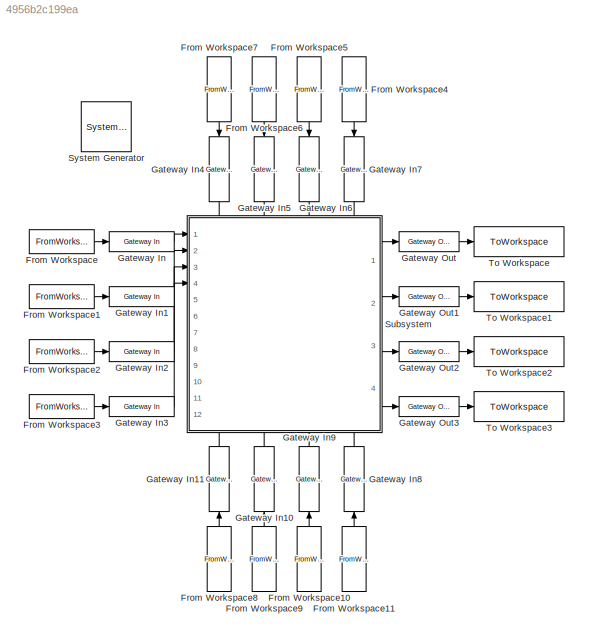
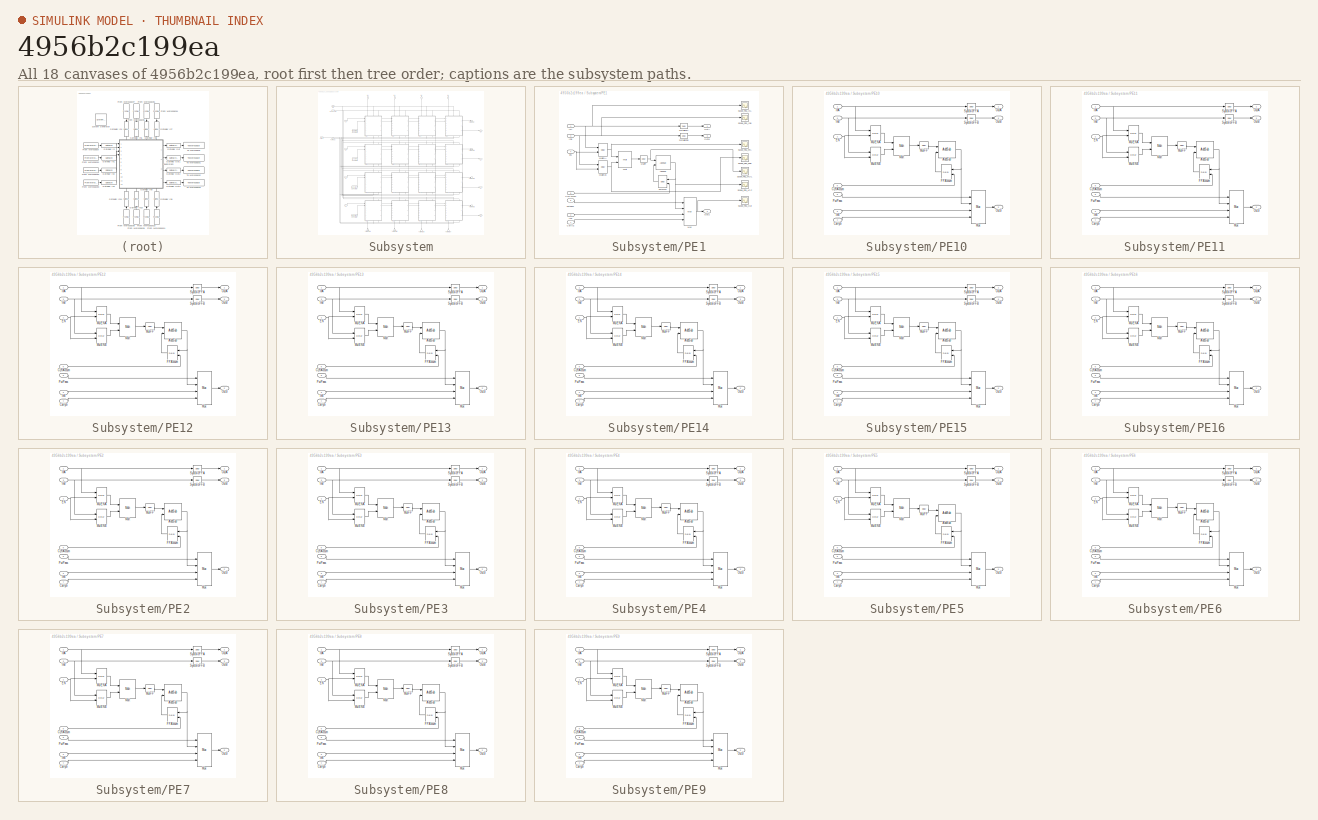
[diagram: thumbnail index - all 18 canvases of the model, root first then tree order]
MODEL slx_4956b2c199ea
KIND model
CONFIG AbsTol = auto
CONFIG EnableMultiTasking = off
CONFIG FixedStep = auto
CONFIG MaxStep = auto
CONFIG MinStep = auto
CONFIG RelTol = 1e-3
CONFIG SampleTimeConstraint = Unconstrained
CONFIG SolverName = VariableStepAuto
CONFIG StartTime = 0.0
CONFIG StopTime = 15
BLOCK [Reference]  System Generator  REF=xbsIndex_r4/ System Generator
  AttributesFormatString = System\nGenerator
  Ports = []
  SourceBlock = xbsIndex_r4/ System Generator
  SourceType = Xilinx System Generator Block
  Tag = genX
  UserDataPersistent = on
BLOCK [FromWorkspace] From Workspace
  OutputAfterFinalValue = Setting to zero
  VariableName = A1
BLOCK [FromWorkspace] From Workspace1
  OutputAfterFinalValue = Setting to zero
  VariableName = A2
BLOCK [FromWorkspace] From Workspace10
  NameLocation = right
  OutputAfterFinalValue = Setting to zero
  VariableName = PP
BLOCK [FromWorkspace] From Workspace11
  NameLocation = right
  OutputAfterFinalValue = Setting to zero
  VariableName = CS
BLOCK [FromWorkspace] From Workspace2
  OutputAfterFinalValue = Setting to zero
  VariableName = A3
BLOCK [FromWorkspace] From Workspace3
  OutputAfterFinalValue = Setting to zero
  VariableName = A4
BLOCK [FromWorkspace] From Workspace4
  NameLocation = left
  OutputAfterFinalValue = Setting to zero
  VariableName = B4
BLOCK [FromWorkspace] From Workspace5
  NameLocation = left
  OutputAfterFinalValue = Setting to zero
  VariableName = B3
BLOCK [FromWorkspace] From Workspace6
  NameLocation = left
  OutputAfterFinalValue = Setting to zero
  VariableName = B2
BLOCK [FromWorkspace] From Workspace7
  NameLocation = left
  OutputAfterFinalValue = Setting to zero
  VariableName = B1
BLOCK [FromWorkspace] From Workspace8
  NameLocation = right
  OutputAfterFinalValue = Setting to zero
  VariableName = EN
BLOCK [FromWorkspace] From Workspace9
  NameLocation = right
  OutputAfterFinalValue = Setting to zero
  VariableName = CL
BLOCK [Reference] Gateway In  REF=hdlBasic/Gateway In
  Ports = [1, 1]
  SourceBlock = hdlBasic/Gateway In
  SourceType = Gateway In Block
BLOCK [Reference] Gateway In1  REF=hdlBasic/Gateway In
  Ports = [1, 1]
  SourceBlock = hdlBasic/Gateway In
  SourceType = Gateway In Block
BLOCK [Reference] Gateway In10  REF=hdlBasic/Gateway In
  NameLocation = right
  Ports = [1, 1]
  SourceBlock = hdlBasic/Gateway In
  SourceType = Gateway In Block
BLOCK [Reference] Gateway In11  REF=hdlBasic/Gateway In
  NameLocation = left
  Ports = [1, 1]
  SourceBlock = hdlBasic/Gateway In
  SourceType = Gateway In Block
BLOCK [Reference] Gateway In2  REF=hdlBasic/Gateway In
  Ports = [1, 1]
  SourceBlock = hdlBasic/Gateway In
  SourceType = Gateway In Block
BLOCK [Reference] Gateway In3  REF=hdlBasic/Gateway In
  Ports = [1, 1]
  SourceBlock = hdlBasic/Gateway In
  SourceType = Gateway In Block
BLOCK [Reference] Gateway In4  REF=hdlBasic/Gateway In
  NameLocation = left
  Ports = [1, 1]
  SourceBlock = hdlBasic/Gateway In
  SourceType = Gateway In Block
BLOCK [Reference] Gateway In5  REF=hdlBasic/Gateway In
  NameLocation = left
  Ports = [1, 1]
  SourceBlock = hdlBasic/Gateway In
  SourceType = Gateway In Block
BLOCK [Reference] Gateway In6  REF=hdlBasic/Gateway In
  NameLocation = left
  Ports = [1, 1]
  SourceBlock = hdlBasic/Gateway In
  SourceType = Gateway In Block
BLOCK [Reference] Gateway In7  REF=hdlBasic/Gateway In
  NameLocation = left
  Ports = [1, 1]
  SourceBlock = hdlBasic/Gateway In
  SourceType = Gateway In Block
BLOCK [Reference] Gateway In8  REF=hdlBasic/Gateway In
  NameLocation = right
  Ports = [1, 1]
  SourceBlock = hdlBasic/Gateway In
  SourceType = Gateway In Block
BLOCK [Reference] Gateway In9  REF=hdlBasic/Gateway In
  NameLocation = right
  Ports = [1, 1]
  SourceBlock = hdlBasic/Gateway In
  SourceType = Gateway In Block
BLOCK [Reference] Gateway Out  REF=hdlBasic/Gateway Out
  Ports = [1, 1]
  SourceBlock = hdlBasic/Gateway Out
  SourceType = Gateway Out Block
BLOCK [Reference] Gateway Out1  REF=hdlBasic/Gateway Out
  Ports = [1, 1]
  SourceBlock = hdlBasic/Gateway Out
  SourceType = Gateway Out Block
BLOCK [Reference] Gateway Out2  REF=hdlBasic/Gateway Out
  Ports = [1, 1]
  SourceBlock = hdlBasic/Gateway Out
  SourceType = Gateway Out Block
BLOCK [Reference] Gateway Out3  REF=hdlBasic/Gateway Out
  Ports = [1, 1]
  SourceBlock = hdlBasic/Gateway Out
  SourceType = Gateway Out Block
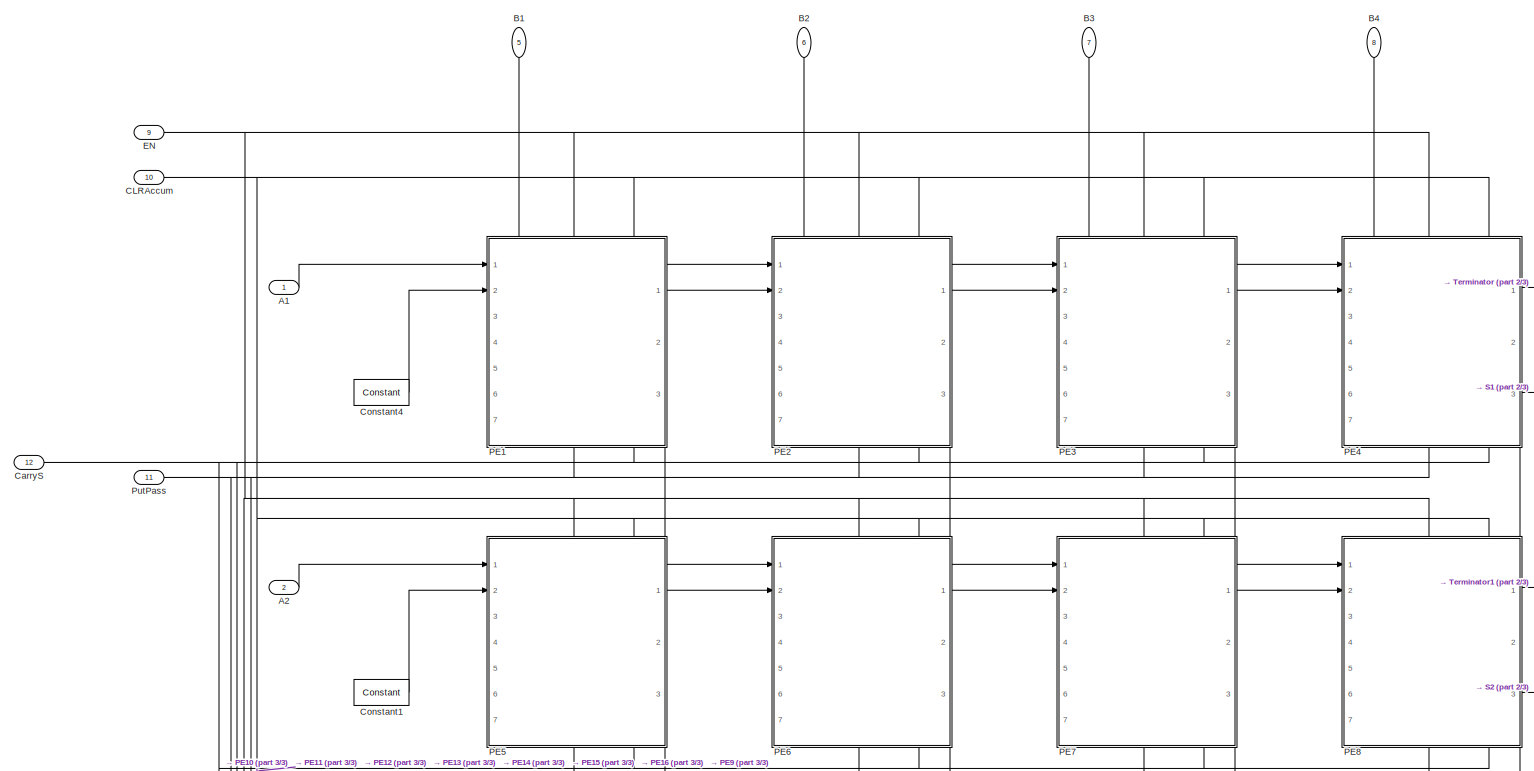
[diagram: Subsystem - part 1/3, full width, top band]
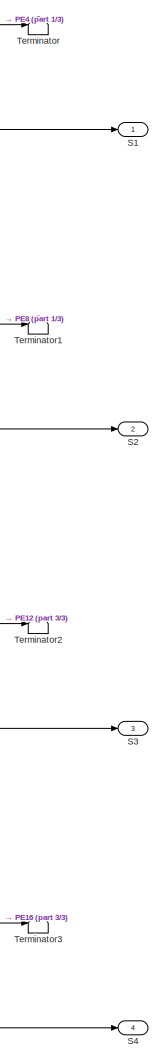
[diagram: Subsystem - part 2/3, middle right region]
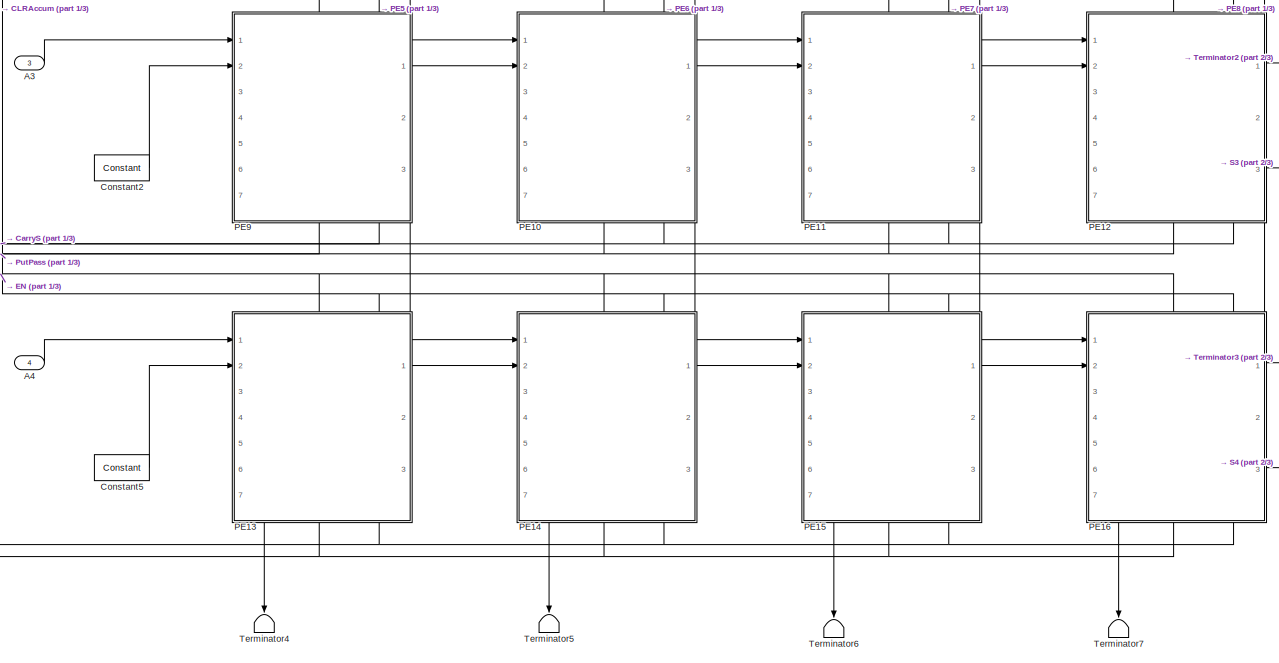
[diagram: Subsystem - part 3/3, full width, bottom band]
BLOCK [SubSystem] Subsystem
  PortSchema = {"entries":[{"content":{"sides":[{"content":{"connectorIds":["In1","In2","In3","In4"]},"type":"ConnectorPlacement.EquallySpacedRectSide","uuid":"ef644a02-469b-4d5d-af2f-26c489a3c425"},{"content":{"connectorIds":["Out1","Out2","Out3","Out4"],"side":"RIGHT"},"type":"ConnectorPlacement.EquallySpacedRectSide","uuid":"314a2994-7795-41ba-894c-92e5f23e8912"},{"content":{"connectorIds":["In5","In6","In7",...<+472ch>
  Ports = [12, 4]
  RequestExecContextInheritance = off
BLOCK [Inport] Subsystem/A1
BLOCK [Inport] Subsystem/A2
  Port = 2
BLOCK [Inport] Subsystem/A3
  Port = 3
BLOCK [Inport] Subsystem/A4
  Port = 4
BLOCK [Inport] Subsystem/B1
  NameLocation = left
  Port = 5
BLOCK [Inport] Subsystem/B2
  NameLocation = left
  Port = 6
BLOCK [Inport] Subsystem/B3
  NameLocation = left
  Port = 7
BLOCK [Inport] Subsystem/B4
  NameLocation = left
  Port = 8
BLOCK [Inport] Subsystem/CLRAccum
  Port = 10
BLOCK [Inport] Subsystem/CarryS
  Port = 12
BLOCK [Reference] Subsystem/Constant1  REF=hdlBasic/Constant
  Ports = [0, 1]
  SourceBlock = hdlBasic/Constant
  SourceType = Constant Block Block
BLOCK [Reference] Subsystem/Constant2  REF=hdlBasic/Constant
  Ports = [0, 1]
  SourceBlock = hdlBasic/Constant
  SourceType = Constant Block Block
BLOCK [Reference] Subsystem/Constant4  REF=hdlBasic/Constant
  Ports = [0, 1]
  SourceBlock = hdlBasic/Constant
  SourceType = Constant Block Block
BLOCK [Reference] Subsystem/Constant5  REF=hdlBasic/Constant
  Ports = [0, 1]
  SourceBlock = hdlBasic/Constant
  SourceType = Constant Block Block
BLOCK [Inport] Subsystem/EN
  Port = 9
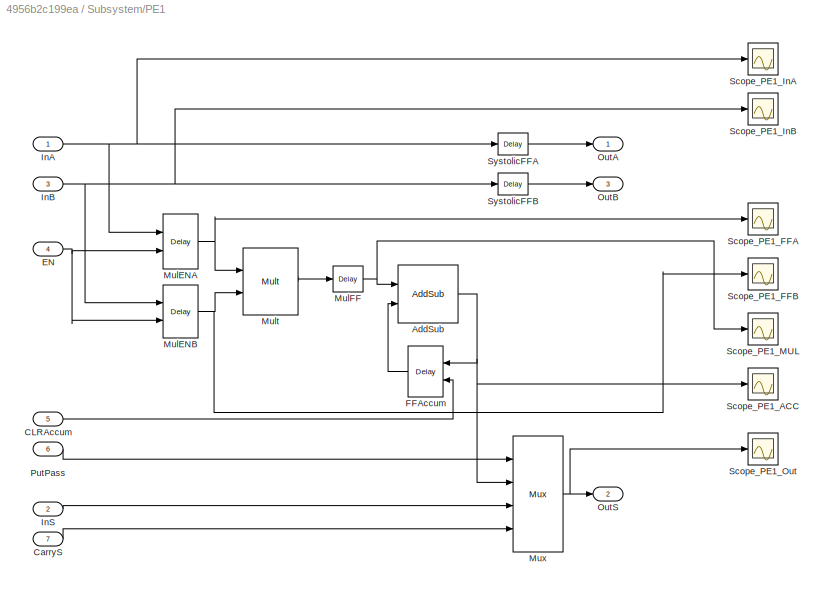
BLOCK [SubSystem] Subsystem/PE1
  PortSchema = {"entries":[{"content":{"sides":[{"content":{"connectorIds":["In1","In2"]},"type":"ConnectorPlacement.EquallySpacedRectSide","uuid":"b0207bf0-c65c-4ff4-8705-318d6fed8092"},{"content":{"connectorIds":["Out1","Out2"],"side":"RIGHT"},"type":"ConnectorPlacement.EquallySpacedRectSide","uuid":"a3adecdb-9d7d-41ad-9a9b-cd1de20cea82"},{"content":{"connectorIds":["In3","In4","In5"],"side":"TOP"},"type":"Con...<+432ch>  <repeated x16 — deduplicated; at blocks: PE1, PE10, PE11, PE12, PE13, PE14, PE15, PE16, PE2, PE3, PE4, PE5, PE6, PE7, PE8, PE9>
  Ports = [7, 3]
  RequestExecContextInheritance = off
BLOCK [Reference] Subsystem/PE1/AddSub  REF=hdlBasic/AddSub
  Ports = [2, 1]
  SourceBlock = hdlBasic/AddSub
  SourceType = Adder/Subtracter Block
BLOCK [Inport] Subsystem/PE1/CLRAccum
  Port = 5
BLOCK [Inport] Subsystem/PE1/CarryS
  Port = 7
BLOCK [Inport] Subsystem/PE1/EN
  Port = 4
BLOCK [Reference] Subsystem/PE1/FFAccum  REF=hdlBasic/Delay
  Ports = [2, 1]
  SourceBlock = hdlBasic/Delay
  SourceType = Delay Block
BLOCK [Inport] Subsystem/PE1/InA
BLOCK [Inport] Subsystem/PE1/InB
  Port = 3
BLOCK [Inport] Subsystem/PE1/InS
  Port = 2
BLOCK [Reference] Subsystem/PE1/MulENA  REF=hdlBasic/Delay
  Ports = [2, 1]
  SourceBlock = hdlBasic/Delay
  SourceType = Delay Block
BLOCK [Reference] Subsystem/PE1/MulENB  REF=hdlBasic/Delay
  Ports = [2, 1]
  SourceBlock = hdlBasic/Delay
  SourceType = Delay Block
BLOCK [Reference] Subsystem/PE1/MulFF  REF=hdlBasic/Delay
  Ports = [1, 1]
  SourceBlock = hdlBasic/Delay
  SourceType = Delay Block
BLOCK [Reference] Subsystem/PE1/Mult  REF=hdlBasic/Mult
  Ports = [2, 1]
  SourceBlock = hdlBasic/Mult
  SourceType = Multiplier Block
BLOCK [Reference] Subsystem/PE1/Mux  REF=hdlBasic/Mux
  Ports = [4, 1]
  SourceBlock = hdlBasic/Mux
  SourceType = Bus Multiplexer Block
BLOCK [Outport] Subsystem/PE1/OutA
BLOCK [Outport] Subsystem/PE1/OutB
  Port = 3
BLOCK [Outport] Subsystem/PE1/OutS
  Port = 2
BLOCK [Inport] Subsystem/PE1/PutPass
  Port = 6
BLOCK [Scope] Subsystem/PE1/Scope_PE1_ACC
  Commented = on
  Floating = off
  NumInputPorts = 1
  Ports = [1]
  ScopeSpecificationString = Simulink.scopes.TimeScopeBlockCfg('CurrentConfiguration', extmgr.ConfigurationSet(extmgr.Configuration('Core','General UI',true),extmgr.Configuration('Core','Source UI',true),extmgr.Configuration('Sources','WiredSimulink',true,'DataLoggingVariableName','ScopeData5'),extmgr.Configuration('Visuals','Time Domain',true,'SerializedDisplays',{struct('MinYLimReal','-1.29956','MaxYLimReal','11.69604','YLa...<+1425ch>
BLOCK [Scope] Subsystem/PE1/Scope_PE1_FFA
  Commented = on
  Floating = off
  NumInputPorts = 1
  Ports = [1]
  ScopeSpecificationString = Simulink.scopes.TimeScopeBlockCfg('CurrentConfiguration', extmgr.ConfigurationSet(extmgr.Configuration('Core','General UI',true),extmgr.Configuration('Core','Source UI',true),extmgr.Configuration('Sources','WiredSimulink',true,'DataLoggingVariableName','ScopeData2'),extmgr.Configuration('Visuals','Time Domain',true,'SerializedDisplays',{struct('MinYLimReal','-0.23938','MaxYLimReal','2.15442','YLab...<+1409ch>
BLOCK [Scope] Subsystem/PE1/Scope_PE1_FFB
  Commented = on
  Floating = off
  NumInputPorts = 1
  Ports = [1]
  ScopeSpecificationString = Simulink.scopes.TimeScopeBlockCfg('CurrentConfiguration', extmgr.ConfigurationSet(extmgr.Configuration('Core','General UI',true),extmgr.Configuration('Core','Source UI',true),extmgr.Configuration('Sources','WiredSimulink',true,'DataLoggingVariableName','ScopeData3'),extmgr.Configuration('Visuals','Time Domain',true,'SerializedDisplays',{struct('MinYLimReal','-0.23987','MaxYLimReal','2.15881','YLab...<+1421ch>
BLOCK [Scope] Subsystem/PE1/Scope_PE1_InA
  Commented = on
  Floating = off
  NumInputPorts = 1
  Ports = [1]
  ScopeSpecificationString = Simulink.scopes.TimeScopeBlockCfg('CurrentConfiguration', extmgr.ConfigurationSet(extmgr.Configuration('Core','General UI',true),extmgr.Configuration('Core','Source UI',true),extmgr.Configuration('Sources','WiredSimulink',true),extmgr.Configuration('Visuals','Time Domain',true,'SerializedDisplays',{struct('MinYLimReal','-0.23938','MaxYLimReal','2.15442','YLabelReal','','MinYLimMag','0.00000','MaxY...<+1366ch>
BLOCK [Scope] Subsystem/PE1/Scope_PE1_InB
  Commented = on
  Floating = off
  NumInputPorts = 1
  Ports = [1]
  ScopeSpecificationString = Simulink.scopes.TimeScopeBlockCfg('CurrentConfiguration', extmgr.ConfigurationSet(extmgr.Configuration('Core','General UI',true),extmgr.Configuration('Core','Source UI',true),extmgr.Configuration('Sources','WiredSimulink',true,'DataLoggingVariableName','ScopeData1'),extmgr.Configuration('Visuals','Time Domain',true,'SerializedDisplays',{struct('MinYLimReal','-0.23987','MaxYLimReal','2.15881','YLab...<+1418ch>
BLOCK [Scope] Subsystem/PE1/Scope_PE1_MUL
  Commented = on
  Floating = off
  NumInputPorts = 1
  Ports = [1]
  ScopeSpecificationString = Simulink.scopes.TimeScopeBlockCfg('CurrentConfiguration', extmgr.ConfigurationSet(extmgr.Configuration('Core','General UI',true),extmgr.Configuration('Core','Source UI',true),extmgr.Configuration('Sources','WiredSimulink',true,'DataLoggingVariableName','ScopeData4'),extmgr.Configuration('Visuals','Time Domain',true,'SerializedDisplays',{struct('MinYLimReal','-0.45911','MaxYLimReal','4.13196','YLab...<+1420ch>
BLOCK [Scope] Subsystem/PE1/Scope_PE1_Out
  Commented = on
  Floating = off
  NumInputPorts = 1
  Ports = [1]
  ScopeSpecificationString = Simulink.scopes.TimeScopeBlockCfg('CurrentConfiguration', extmgr.ConfigurationSet(extmgr.Configuration('Core','General UI',true),extmgr.Configuration('Core','Source UI',true),extmgr.Configuration('Sources','WiredSimulink',true,'DataLoggingVariableName','ScopeData6'),extmgr.Configuration('Visuals','Time Domain',true,'SerializedDisplays',{struct('MinYLimReal','-1.29956','MaxYLimReal','11.69604','YLa...<+1422ch>
BLOCK [Reference] Subsystem/PE1/SystolicFFA  REF=hdlBasic/Delay
  Ports = [1, 1]
  SourceBlock = hdlBasic/Delay
  SourceType = Delay Block
BLOCK [Reference] Subsystem/PE1/SystolicFFB  REF=hdlBasic/Delay
  Ports = [1, 1]
  SourceBlock = hdlBasic/Delay
  SourceType = Delay Block
BLOCK [SubSystem] Subsystem/PE10
  Ports = [7, 3]
  RequestExecContextInheritance = off
BLOCK [Reference] Subsystem/PE10/AddSub  REF=hdlBasic/AddSub
  Ports = [2, 1]
  SourceBlock = hdlBasic/AddSub
  SourceType = Adder/Subtracter Block
BLOCK [Inport] Subsystem/PE10/CLRAccum
  Port = 5
BLOCK [Inport] Subsystem/PE10/CarryS
  Port = 7
BLOCK [Inport] Subsystem/PE10/EN
  Port = 4
BLOCK [Reference] Subsystem/PE10/FFAccum  REF=hdlBasic/Delay
  Ports = [2, 1]
  SourceBlock = hdlBasic/Delay
  SourceType = Delay Block
BLOCK [Inport] Subsystem/PE10/InA
BLOCK [Inport] Subsystem/PE10/InB
  Port = 3
BLOCK [Inport] Subsystem/PE10/InS
  Port = 2
BLOCK [Reference] Subsystem/PE10/MulENA  REF=hdlBasic/Delay
  Ports = [2, 1]
  SourceBlock = hdlBasic/Delay
  SourceType = Delay Block
BLOCK [Reference] Subsystem/PE10/MulENB  REF=hdlBasic/Delay
  Ports = [2, 1]
  SourceBlock = hdlBasic/Delay
  SourceType = Delay Block
BLOCK [Reference] Subsystem/PE10/MulFF  REF=hdlBasic/Delay
  Ports = [1, 1]
  SourceBlock = hdlBasic/Delay
  SourceType = Delay Block
BLOCK [Reference] Subsystem/PE10/Mult  REF=hdlBasic/Mult
  Ports = [2, 1]
  SourceBlock = hdlBasic/Mult
  SourceType = Multiplier Block
BLOCK [Reference] Subsystem/PE10/Mux  REF=hdlBasic/Mux
  Ports = [4, 1]
  SourceBlock = hdlBasic/Mux
  SourceType = Bus Multiplexer Block
BLOCK [Outport] Subsystem/PE10/OutA
BLOCK [Outport] Subsystem/PE10/OutB
  Port = 3
BLOCK [Outport] Subsystem/PE10/OutS
  Port = 2
BLOCK [Inport] Subsystem/PE10/PutPass
  Port = 6
BLOCK [Reference] Subsystem/PE10/SystolicFFA  REF=hdlBasic/Delay
  Ports = [1, 1]
  SourceBlock = hdlBasic/Delay
  SourceType = Delay Block
BLOCK [Reference] Subsystem/PE10/SystolicFFB  REF=hdlBasic/Delay
  Ports = [1, 1]
  SourceBlock = hdlBasic/Delay
  SourceType = Delay Block
BLOCK [SubSystem] Subsystem/PE11
  Ports = [7, 3]
  RequestExecContextInheritance = off
BLOCK [Reference] Subsystem/PE11/AddSub  REF=hdlBasic/AddSub
  Ports = [2, 1]
  SourceBlock = hdlBasic/AddSub
  SourceType = Adder/Subtracter Block
BLOCK [Inport] Subsystem/PE11/CLRAccum
  Port = 5
BLOCK [Inport] Subsystem/PE11/CarryS
  Port = 7
BLOCK [Inport] Subsystem/PE11/EN
  Port = 4
BLOCK [Reference] Subsystem/PE11/FFAccum  REF=hdlBasic/Delay
  Ports = [2, 1]
  SourceBlock = hdlBasic/Delay
  SourceType = Delay Block
BLOCK [Inport] Subsystem/PE11/InA
BLOCK [Inport] Subsystem/PE11/InB
  Port = 3
BLOCK [Inport] Subsystem/PE11/InS
  Port = 2
BLOCK [Reference] Subsystem/PE11/MulENA  REF=hdlBasic/Delay
  Ports = [2, 1]
  SourceBlock = hdlBasic/Delay
  SourceType = Delay Block
BLOCK [Reference] Subsystem/PE11/MulENB  REF=hdlBasic/Delay
  Ports = [2, 1]
  SourceBlock = hdlBasic/Delay
  SourceType = Delay Block
BLOCK [Reference] Subsystem/PE11/MulFF  REF=hdlBasic/Delay
  Ports = [1, 1]
  SourceBlock = hdlBasic/Delay
  SourceType = Delay Block
BLOCK [Reference] Subsystem/PE11/Mult  REF=hdlBasic/Mult
  Ports = [2, 1]
  SourceBlock = hdlBasic/Mult
  SourceType = Multiplier Block
BLOCK [Reference] Subsystem/PE11/Mux  REF=hdlBasic/Mux
  Ports = [4, 1]
  SourceBlock = hdlBasic/Mux
  SourceType = Bus Multiplexer Block
BLOCK [Outport] Subsystem/PE11/OutA
BLOCK [Outport] Subsystem/PE11/OutB
  Port = 3
BLOCK [Outport] Subsystem/PE11/OutS
  Port = 2
BLOCK [Inport] Subsystem/PE11/PutPass
  Port = 6
BLOCK [Reference] Subsystem/PE11/SystolicFFA  REF=hdlBasic/Delay
  Ports = [1, 1]
  SourceBlock = hdlBasic/Delay
  SourceType = Delay Block
BLOCK [Reference] Subsystem/PE11/SystolicFFB  REF=hdlBasic/Delay
  Ports = [1, 1]
  SourceBlock = hdlBasic/Delay
  SourceType = Delay Block
BLOCK [SubSystem] Subsystem/PE12
  Ports = [7, 3]
  RequestExecContextInheritance = off
BLOCK [Reference] Subsystem/PE12/AddSub  REF=hdlBasic/AddSub
  Ports = [2, 1]
  SourceBlock = hdlBasic/AddSub
  SourceType = Adder/Subtracter Block
BLOCK [Inport] Subsystem/PE12/CLRAccum
  Port = 5
BLOCK [Inport] Subsystem/PE12/CarryS
  Port = 7
BLOCK [Inport] Subsystem/PE12/EN
  Port = 4
BLOCK [Reference] Subsystem/PE12/FFAccum  REF=hdlBasic/Delay
  Ports = [2, 1]
  SourceBlock = hdlBasic/Delay
  SourceType = Delay Block
BLOCK [Inport] Subsystem/PE12/InA
BLOCK [Inport] Subsystem/PE12/InB
  Port = 3
BLOCK [Inport] Subsystem/PE12/InS
  Port = 2
BLOCK [Reference] Subsystem/PE12/MulENA  REF=hdlBasic/Delay
  Ports = [2, 1]
  SourceBlock = hdlBasic/Delay
  SourceType = Delay Block
BLOCK [Reference] Subsystem/PE12/MulENB  REF=hdlBasic/Delay
  Ports = [2, 1]
  SourceBlock = hdlBasic/Delay
  SourceType = Delay Block
BLOCK [Reference] Subsystem/PE12/MulFF  REF=hdlBasic/Delay
  Ports = [1, 1]
  SourceBlock = hdlBasic/Delay
  SourceType = Delay Block
BLOCK [Reference] Subsystem/PE12/Mult  REF=hdlBasic/Mult
  Ports = [2, 1]
  SourceBlock = hdlBasic/Mult
  SourceType = Multiplier Block
BLOCK [Reference] Subsystem/PE12/Mux  REF=hdlBasic/Mux
  Ports = [4, 1]
  SourceBlock = hdlBasic/Mux
  SourceType = Bus Multiplexer Block
BLOCK [Outport] Subsystem/PE12/OutA
BLOCK [Outport] Subsystem/PE12/OutB
  Port = 3
BLOCK [Outport] Subsystem/PE12/OutS
  Port = 2
BLOCK [Inport] Subsystem/PE12/PutPass
  Port = 6
BLOCK [Reference] Subsystem/PE12/SystolicFFA  REF=hdlBasic/Delay
  Ports = [1, 1]
  SourceBlock = hdlBasic/Delay
  SourceType = Delay Block
BLOCK [Reference] Subsystem/PE12/SystolicFFB  REF=hdlBasic/Delay
  Ports = [1, 1]
  SourceBlock = hdlBasic/Delay
  SourceType = Delay Block
BLOCK [SubSystem] Subsystem/PE13
  Ports = [7, 3]
  RequestExecContextInheritance = off
BLOCK [Reference] Subsystem/PE13/AddSub  REF=hdlBasic/AddSub
  Ports = [2, 1]
  SourceBlock = hdlBasic/AddSub
  SourceType = Adder/Subtracter Block
BLOCK [Inport] Subsystem/PE13/CLRAccum
  Port = 5
BLOCK [Inport] Subsystem/PE13/CarryS
  Port = 7
BLOCK [Inport] Subsystem/PE13/EN
  Port = 4
BLOCK [Reference] Subsystem/PE13/FFAccum  REF=hdlBasic/Delay
  Ports = [2, 1]
  SourceBlock = hdlBasic/Delay
  SourceType = Delay Block
BLOCK [Inport] Subsystem/PE13/InA
BLOCK [Inport] Subsystem/PE13/InB
  Port = 3
BLOCK [Inport] Subsystem/PE13/InS
  Port = 2
BLOCK [Reference] Subsystem/PE13/MulENA  REF=hdlBasic/Delay
  Ports = [2, 1]
  SourceBlock = hdlBasic/Delay
  SourceType = Delay Block
BLOCK [Reference] Subsystem/PE13/MulENB  REF=hdlBasic/Delay
  Ports = [2, 1]
  SourceBlock = hdlBasic/Delay
  SourceType = Delay Block
BLOCK [Reference] Subsystem/PE13/MulFF  REF=hdlBasic/Delay
  Ports = [1, 1]
  SourceBlock = hdlBasic/Delay
  SourceType = Delay Block
BLOCK [Reference] Subsystem/PE13/Mult  REF=hdlBasic/Mult
  Ports = [2, 1]
  SourceBlock = hdlBasic/Mult
  SourceType = Multiplier Block
BLOCK [Reference] Subsystem/PE13/Mux  REF=hdlBasic/Mux
  Ports = [4, 1]
  SourceBlock = hdlBasic/Mux
  SourceType = Bus Multiplexer Block
BLOCK [Outport] Subsystem/PE13/OutA
BLOCK [Outport] Subsystem/PE13/OutB
  Port = 3
BLOCK [Outport] Subsystem/PE13/OutS
  Port = 2
BLOCK [Inport] Subsystem/PE13/PutPass
  Port = 6
BLOCK [Reference] Subsystem/PE13/SystolicFFA  REF=hdlBasic/Delay
  Ports = [1, 1]
  SourceBlock = hdlBasic/Delay
  SourceType = Delay Block
BLOCK [Reference] Subsystem/PE13/SystolicFFB  REF=hdlBasic/Delay
  Ports = [1, 1]
  SourceBlock = hdlBasic/Delay
  SourceType = Delay Block
BLOCK [SubSystem] Subsystem/PE14
  Ports = [7, 3]
  RequestExecContextInheritance = off
BLOCK [Reference] Subsystem/PE14/AddSub  REF=hdlBasic/AddSub
  Ports = [2, 1]
  SourceBlock = hdlBasic/AddSub
  SourceType = Adder/Subtracter Block
BLOCK [Inport] Subsystem/PE14/CLRAccum
  Port = 5
BLOCK [Inport] Subsystem/PE14/CarryS
  Port = 7
BLOCK [Inport] Subsystem/PE14/EN
  Port = 4
BLOCK [Reference] Subsystem/PE14/FFAccum  REF=hdlBasic/Delay
  Ports = [2, 1]
  SourceBlock = hdlBasic/Delay
  SourceType = Delay Block
BLOCK [Inport] Subsystem/PE14/InA
BLOCK [Inport] Subsystem/PE14/InB
  Port = 3
BLOCK [Inport] Subsystem/PE14/InS
  Port = 2
BLOCK [Reference] Subsystem/PE14/MulENA  REF=hdlBasic/Delay
  Ports = [2, 1]
  SourceBlock = hdlBasic/Delay
  SourceType = Delay Block
BLOCK [Reference] Subsystem/PE14/MulENB  REF=hdlBasic/Delay
  Ports = [2, 1]
  SourceBlock = hdlBasic/Delay
  SourceType = Delay Block
BLOCK [Reference] Subsystem/PE14/MulFF  REF=hdlBasic/Delay
  Ports = [1, 1]
  SourceBlock = hdlBasic/Delay
  SourceType = Delay Block
BLOCK [Reference] Subsystem/PE14/Mult  REF=hdlBasic/Mult
  Ports = [2, 1]
  SourceBlock = hdlBasic/Mult
  SourceType = Multiplier Block
BLOCK [Reference] Subsystem/PE14/Mux  REF=hdlBasic/Mux
  Ports = [4, 1]
  SourceBlock = hdlBasic/Mux
  SourceType = Bus Multiplexer Block
BLOCK [Outport] Subsystem/PE14/OutA
BLOCK [Outport] Subsystem/PE14/OutB
  Port = 3
BLOCK [Outport] Subsystem/PE14/OutS
  Port = 2
BLOCK [Inport] Subsystem/PE14/PutPass
  Port = 6
BLOCK [Reference] Subsystem/PE14/SystolicFFA  REF=hdlBasic/Delay
  Ports = [1, 1]
  SourceBlock = hdlBasic/Delay
  SourceType = Delay Block
BLOCK [Reference] Subsystem/PE14/SystolicFFB  REF=hdlBasic/Delay
  Ports = [1, 1]
  SourceBlock = hdlBasic/Delay
  SourceType = Delay Block
BLOCK [SubSystem] Subsystem/PE15
  Ports = [7, 3]
  RequestExecContextInheritance = off
BLOCK [Reference] Subsystem/PE15/AddSub  REF=hdlBasic/AddSub
  Ports = [2, 1]
  SourceBlock = hdlBasic/AddSub
  SourceType = Adder/Subtracter Block
BLOCK [Inport] Subsystem/PE15/CLRAccum
  Port = 5
BLOCK [Inport] Subsystem/PE15/CarryS
  Port = 7
BLOCK [Inport] Subsystem/PE15/EN
  Port = 4
BLOCK [Reference] Subsystem/PE15/FFAccum  REF=hdlBasic/Delay
  Ports = [2, 1]
  SourceBlock = hdlBasic/Delay
  SourceType = Delay Block
BLOCK [Inport] Subsystem/PE15/InA
BLOCK [Inport] Subsystem/PE15/InB
  Port = 3
BLOCK [Inport] Subsystem/PE15/InS
  Port = 2
BLOCK [Reference] Subsystem/PE15/MulENA  REF=hdlBasic/Delay
  Ports = [2, 1]
  SourceBlock = hdlBasic/Delay
  SourceType = Delay Block
BLOCK [Reference] Subsystem/PE15/MulENB  REF=hdlBasic/Delay
  Ports = [2, 1]
  SourceBlock = hdlBasic/Delay
  SourceType = Delay Block
BLOCK [Reference] Subsystem/PE15/MulFF  REF=hdlBasic/Delay
  Ports = [1, 1]
  SourceBlock = hdlBasic/Delay
  SourceType = Delay Block
BLOCK [Reference] Subsystem/PE15/Mult  REF=hdlBasic/Mult
  Ports = [2, 1]
  SourceBlock = hdlBasic/Mult
  SourceType = Multiplier Block
BLOCK [Reference] Subsystem/PE15/Mux  REF=hdlBasic/Mux
  Ports = [4, 1]
  SourceBlock = hdlBasic/Mux
  SourceType = Bus Multiplexer Block
BLOCK [Outport] Subsystem/PE15/OutA
BLOCK [Outport] Subsystem/PE15/OutB
  Port = 3
BLOCK [Outport] Subsystem/PE15/OutS
  Port = 2
BLOCK [Inport] Subsystem/PE15/PutPass
  Port = 6
BLOCK [Reference] Subsystem/PE15/SystolicFFA  REF=hdlBasic/Delay
  Ports = [1, 1]
  SourceBlock = hdlBasic/Delay
  SourceType = Delay Block
BLOCK [Reference] Subsystem/PE15/SystolicFFB  REF=hdlBasic/Delay
  Ports = [1, 1]
  SourceBlock = hdlBasic/Delay
  SourceType = Delay Block
BLOCK [SubSystem] Subsystem/PE16
  Ports = [7, 3]
  RequestExecContextInheritance = off
BLOCK [Reference] Subsystem/PE16/AddSub  REF=hdlBasic/AddSub
  Ports = [2, 1]
  SourceBlock = hdlBasic/AddSub
  SourceType = Adder/Subtracter Block
BLOCK [Inport] Subsystem/PE16/CLRAccum
  Port = 5
BLOCK [Inport] Subsystem/PE16/CarryS
  Port = 7
BLOCK [Inport] Subsystem/PE16/EN
  Port = 4
BLOCK [Reference] Subsystem/PE16/FFAccum  REF=hdlBasic/Delay
  Ports = [2, 1]
  SourceBlock = hdlBasic/Delay
  SourceType = Delay Block
BLOCK [Inport] Subsystem/PE16/InA
BLOCK [Inport] Subsystem/PE16/InB
  Port = 3
BLOCK [Inport] Subsystem/PE16/InS
  Port = 2
BLOCK [Reference] Subsystem/PE16/MulENA  REF=hdlBasic/Delay
  Ports = [2, 1]
  SourceBlock = hdlBasic/Delay
  SourceType = Delay Block
BLOCK [Reference] Subsystem/PE16/MulENB  REF=hdlBasic/Delay
  Ports = [2, 1]
  SourceBlock = hdlBasic/Delay
  SourceType = Delay Block
BLOCK [Reference] Subsystem/PE16/MulFF  REF=hdlBasic/Delay
  Ports = [1, 1]
  SourceBlock = hdlBasic/Delay
  SourceType = Delay Block
BLOCK [Reference] Subsystem/PE16/Mult  REF=hdlBasic/Mult
  Ports = [2, 1]
  SourceBlock = hdlBasic/Mult
  SourceType = Multiplier Block
BLOCK [Reference] Subsystem/PE16/Mux  REF=hdlBasic/Mux
  Ports = [4, 1]
  SourceBlock = hdlBasic/Mux
  SourceType = Bus Multiplexer Block
BLOCK [Outport] Subsystem/PE16/OutA
BLOCK [Outport] Subsystem/PE16/OutB
  Port = 3
BLOCK [Outport] Subsystem/PE16/OutS
  Port = 2
BLOCK [Inport] Subsystem/PE16/PutPass
  Port = 6
BLOCK [Reference] Subsystem/PE16/SystolicFFA  REF=hdlBasic/Delay
  Ports = [1, 1]
  SourceBlock = hdlBasic/Delay
  SourceType = Delay Block
BLOCK [Reference] Subsystem/PE16/SystolicFFB  REF=hdlBasic/Delay
  Ports = [1, 1]
  SourceBlock = hdlBasic/Delay
  SourceType = Delay Block
BLOCK [SubSystem] Subsystem/PE2
  Ports = [7, 3]
  RequestExecContextInheritance = off
BLOCK [Reference] Subsystem/PE2/AddSub  REF=hdlBasic/AddSub
  Ports = [2, 1]
  SourceBlock = hdlBasic/AddSub
  SourceType = Adder/Subtracter Block
BLOCK [Inport] Subsystem/PE2/CLRAccum
  Port = 5
BLOCK [Inport] Subsystem/PE2/CarryS
  Port = 7
BLOCK [Inport] Subsystem/PE2/EN
  Port = 4
BLOCK [Reference] Subsystem/PE2/FFAccum  REF=hdlBasic/Delay
  Ports = [2, 1]
  SourceBlock = hdlBasic/Delay
  SourceType = Delay Block
BLOCK [Inport] Subsystem/PE2/InA
BLOCK [Inport] Subsystem/PE2/InB
  Port = 3
BLOCK [Inport] Subsystem/PE2/InS
  Port = 2
BLOCK [Reference] Subsystem/PE2/MulENA  REF=hdlBasic/Delay
  Ports = [2, 1]
  SourceBlock = hdlBasic/Delay
  SourceType = Delay Block
BLOCK [Reference] Subsystem/PE2/MulENB  REF=hdlBasic/Delay
  Ports = [2, 1]
  SourceBlock = hdlBasic/Delay
  SourceType = Delay Block
BLOCK [Reference] Subsystem/PE2/MulFF  REF=hdlBasic/Delay
  Ports = [1, 1]
  SourceBlock = hdlBasic/Delay
  SourceType = Delay Block
BLOCK [Reference] Subsystem/PE2/Mult  REF=hdlBasic/Mult
  Ports = [2, 1]
  SourceBlock = hdlBasic/Mult
  SourceType = Multiplier Block
BLOCK [Reference] Subsystem/PE2/Mux  REF=hdlBasic/Mux
  Ports = [4, 1]
  SourceBlock = hdlBasic/Mux
  SourceType = Bus Multiplexer Block
BLOCK [Outport] Subsystem/PE2/OutA
BLOCK [Outport] Subsystem/PE2/OutB
  Port = 3
BLOCK [Outport] Subsystem/PE2/OutS
  Port = 2
BLOCK [Inport] Subsystem/PE2/PutPass
  Port = 6
BLOCK [Reference] Subsystem/PE2/SystolicFFA  REF=hdlBasic/Delay
  Ports = [1, 1]
  SourceBlock = hdlBasic/Delay
  SourceType = Delay Block
BLOCK [Reference] Subsystem/PE2/SystolicFFB  REF=hdlBasic/Delay
  Ports = [1, 1]
  SourceBlock = hdlBasic/Delay
  SourceType = Delay Block
BLOCK [SubSystem] Subsystem/PE3
  Ports = [7, 3]
  RequestExecContextInheritance = off
BLOCK [Reference] Subsystem/PE3/AddSub  REF=hdlBasic/AddSub
  Ports = [2, 1]
  SourceBlock = hdlBasic/AddSub
  SourceType = Adder/Subtracter Block
BLOCK [Inport] Subsystem/PE3/CLRAccum
  Port = 5
BLOCK [Inport] Subsystem/PE3/CarryS
  Port = 7
BLOCK [Inport] Subsystem/PE3/EN
  Port = 4
BLOCK [Reference] Subsystem/PE3/FFAccum  REF=hdlBasic/Delay
  Ports = [2, 1]
  SourceBlock = hdlBasic/Delay
  SourceType = Delay Block
BLOCK [Inport] Subsystem/PE3/InA
BLOCK [Inport] Subsystem/PE3/InB
  Port = 3
BLOCK [Inport] Subsystem/PE3/InS
  Port = 2
BLOCK [Reference] Subsystem/PE3/MulENA  REF=hdlBasic/Delay
  Ports = [2, 1]
  SourceBlock = hdlBasic/Delay
  SourceType = Delay Block
BLOCK [Reference] Subsystem/PE3/MulENB  REF=hdlBasic/Delay
  Ports = [2, 1]
  SourceBlock = hdlBasic/Delay
  SourceType = Delay Block
BLOCK [Reference] Subsystem/PE3/MulFF  REF=hdlBasic/Delay
  Ports = [1, 1]
  SourceBlock = hdlBasic/Delay
  SourceType = Delay Block
BLOCK [Reference] Subsystem/PE3/Mult  REF=hdlBasic/Mult
  Ports = [2, 1]
  SourceBlock = hdlBasic/Mult
  SourceType = Multiplier Block
BLOCK [Reference] Subsystem/PE3/Mux  REF=hdlBasic/Mux
  Ports = [4, 1]
  SourceBlock = hdlBasic/Mux
  SourceType = Bus Multiplexer Block
BLOCK [Outport] Subsystem/PE3/OutA
BLOCK [Outport] Subsystem/PE3/OutB
  Port = 3
BLOCK [Outport] Subsystem/PE3/OutS
  Port = 2
BLOCK [Inport] Subsystem/PE3/PutPass
  Port = 6
BLOCK [Reference] Subsystem/PE3/SystolicFFA  REF=hdlBasic/Delay
  Ports = [1, 1]
  SourceBlock = hdlBasic/Delay
  SourceType = Delay Block
BLOCK [Reference] Subsystem/PE3/SystolicFFB  REF=hdlBasic/Delay
  Ports = [1, 1]
  SourceBlock = hdlBasic/Delay
  SourceType = Delay Block
BLOCK [SubSystem] Subsystem/PE4
  Ports = [7, 3]
  RequestExecContextInheritance = off
BLOCK [Reference] Subsystem/PE4/AddSub  REF=hdlBasic/AddSub
  Ports = [2, 1]
  SourceBlock = hdlBasic/AddSub
  SourceType = Adder/Subtracter Block
BLOCK [Inport] Subsystem/PE4/CLRAccum
  Port = 5
BLOCK [Inport] Subsystem/PE4/CarryS
  Port = 7
BLOCK [Inport] Subsystem/PE4/EN
  Port = 4
BLOCK [Reference] Subsystem/PE4/FFAccum  REF=hdlBasic/Delay
  Ports = [2, 1]
  SourceBlock = hdlBasic/Delay
  SourceType = Delay Block
BLOCK [Inport] Subsystem/PE4/InA
BLOCK [Inport] Subsystem/PE4/InB
  Port = 3
BLOCK [Inport] Subsystem/PE4/InS
  Port = 2
BLOCK [Reference] Subsystem/PE4/MulENA  REF=hdlBasic/Delay
  Ports = [2, 1]
  SourceBlock = hdlBasic/Delay
  SourceType = Delay Block
BLOCK [Reference] Subsystem/PE4/MulENB  REF=hdlBasic/Delay
  Ports = [2, 1]
  SourceBlock = hdlBasic/Delay
  SourceType = Delay Block
BLOCK [Reference] Subsystem/PE4/MulFF  REF=hdlBasic/Delay
  Ports = [1, 1]
  SourceBlock = hdlBasic/Delay
  SourceType = Delay Block
BLOCK [Reference] Subsystem/PE4/Mult  REF=hdlBasic/Mult
  Ports = [2, 1]
  SourceBlock = hdlBasic/Mult
  SourceType = Multiplier Block
BLOCK [Reference] Subsystem/PE4/Mux  REF=hdlBasic/Mux
  Ports = [4, 1]
  SourceBlock = hdlBasic/Mux
  SourceType = Bus Multiplexer Block
BLOCK [Outport] Subsystem/PE4/OutA
BLOCK [Outport] Subsystem/PE4/OutB
  Port = 3
BLOCK [Outport] Subsystem/PE4/OutS
  Port = 2
BLOCK [Inport] Subsystem/PE4/PutPass
  Port = 6
BLOCK [Reference] Subsystem/PE4/SystolicFFA  REF=hdlBasic/Delay
  Ports = [1, 1]
  SourceBlock = hdlBasic/Delay
  SourceType = Delay Block
BLOCK [Reference] Subsystem/PE4/SystolicFFB  REF=hdlBasic/Delay
  Ports = [1, 1]
  SourceBlock = hdlBasic/Delay
  SourceType = Delay Block
BLOCK [SubSystem] Subsystem/PE5
  Ports = [7, 3]
  RequestExecContextInheritance = off
BLOCK [Reference] Subsystem/PE5/AddSub  REF=hdlBasic/AddSub
  Ports = [2, 1]
  SourceBlock = hdlBasic/AddSub
  SourceType = Adder/Subtracter Block
BLOCK [Inport] Subsystem/PE5/CLRAccum
  Port = 5
BLOCK [Inport] Subsystem/PE5/CarryS
  Port = 7
BLOCK [Inport] Subsystem/PE5/EN
  Port = 4
BLOCK [Reference] Subsystem/PE5/FFAccum  REF=hdlBasic/Delay
  Ports = [2, 1]
  SourceBlock = hdlBasic/Delay
  SourceType = Delay Block
BLOCK [Inport] Subsystem/PE5/InA
BLOCK [Inport] Subsystem/PE5/InB
  Port = 3
BLOCK [Inport] Subsystem/PE5/InS
  Port = 2
BLOCK [Reference] Subsystem/PE5/MulENA  REF=hdlBasic/Delay
  Ports = [2, 1]
  SourceBlock = hdlBasic/Delay
  SourceType = Delay Block
BLOCK [Reference] Subsystem/PE5/MulENB  REF=hdlBasic/Delay
  Ports = [2, 1]
  SourceBlock = hdlBasic/Delay
  SourceType = Delay Block
BLOCK [Reference] Subsystem/PE5/MulFF  REF=hdlBasic/Delay
  Ports = [1, 1]
  SourceBlock = hdlBasic/Delay
  SourceType = Delay Block
BLOCK [Reference] Subsystem/PE5/Mult  REF=hdlBasic/Mult
  Ports = [2, 1]
  SourceBlock = hdlBasic/Mult
  SourceType = Multiplier Block
BLOCK [Reference] Subsystem/PE5/Mux  REF=hdlBasic/Mux
  Ports = [4, 1]
  SourceBlock = hdlBasic/Mux
  SourceType = Bus Multiplexer Block
BLOCK [Outport] Subsystem/PE5/OutA
BLOCK [Outport] Subsystem/PE5/OutB
  Port = 3
BLOCK [Outport] Subsystem/PE5/OutS
  Port = 2
BLOCK [Inport] Subsystem/PE5/PutPass
  Port = 6
BLOCK [Reference] Subsystem/PE5/SystolicFFA  REF=hdlBasic/Delay
  Ports = [1, 1]
  SourceBlock = hdlBasic/Delay
  SourceType = Delay Block
BLOCK [Reference] Subsystem/PE5/SystolicFFB  REF=hdlBasic/Delay
  Ports = [1, 1]
  SourceBlock = hdlBasic/Delay
  SourceType = Delay Block
BLOCK [SubSystem] Subsystem/PE6
  Ports = [7, 3]
  RequestExecContextInheritance = off
BLOCK [Reference] Subsystem/PE6/AddSub  REF=hdlBasic/AddSub
  Ports = [2, 1]
  SourceBlock = hdlBasic/AddSub
  SourceType = Adder/Subtracter Block
BLOCK [Inport] Subsystem/PE6/CLRAccum
  Port = 5
BLOCK [Inport] Subsystem/PE6/CarryS
  Port = 7
BLOCK [Inport] Subsystem/PE6/EN
  Port = 4
BLOCK [Reference] Subsystem/PE6/FFAccum  REF=hdlBasic/Delay
  Ports = [2, 1]
  SourceBlock = hdlBasic/Delay
  SourceType = Delay Block
BLOCK [Inport] Subsystem/PE6/InA
BLOCK [Inport] Subsystem/PE6/InB
  Port = 3
BLOCK [Inport] Subsystem/PE6/InS
  Port = 2
BLOCK [Reference] Subsystem/PE6/MulENA  REF=hdlBasic/Delay
  Ports = [2, 1]
  SourceBlock = hdlBasic/Delay
  SourceType = Delay Block
BLOCK [Reference] Subsystem/PE6/MulENB  REF=hdlBasic/Delay
  Ports = [2, 1]
  SourceBlock = hdlBasic/Delay
  SourceType = Delay Block
BLOCK [Reference] Subsystem/PE6/MulFF  REF=hdlBasic/Delay
  Ports = [1, 1]
  SourceBlock = hdlBasic/Delay
  SourceType = Delay Block
BLOCK [Reference] Subsystem/PE6/Mult  REF=hdlBasic/Mult
  Ports = [2, 1]
  SourceBlock = hdlBasic/Mult
  SourceType = Multiplier Block
BLOCK [Reference] Subsystem/PE6/Mux  REF=hdlBasic/Mux
  Ports = [4, 1]
  SourceBlock = hdlBasic/Mux
  SourceType = Bus Multiplexer Block
BLOCK [Outport] Subsystem/PE6/OutA
BLOCK [Outport] Subsystem/PE6/OutB
  Port = 3
BLOCK [Outport] Subsystem/PE6/OutS
  Port = 2
BLOCK [Inport] Subsystem/PE6/PutPass
  Port = 6
BLOCK [Reference] Subsystem/PE6/SystolicFFA  REF=hdlBasic/Delay
  Ports = [1, 1]
  SourceBlock = hdlBasic/Delay
  SourceType = Delay Block
BLOCK [Reference] Subsystem/PE6/SystolicFFB  REF=hdlBasic/Delay
  Ports = [1, 1]
  SourceBlock = hdlBasic/Delay
  SourceType = Delay Block
BLOCK [SubSystem] Subsystem/PE7
  Ports = [7, 3]
  RequestExecContextInheritance = off
BLOCK [Reference] Subsystem/PE7/AddSub  REF=hdlBasic/AddSub
  Ports = [2, 1]
  SourceBlock = hdlBasic/AddSub
  SourceType = Adder/Subtracter Block
BLOCK [Inport] Subsystem/PE7/CLRAccum
  Port = 5
BLOCK [Inport] Subsystem/PE7/CarryS
  Port = 7
BLOCK [Inport] Subsystem/PE7/EN
  Port = 4
BLOCK [Reference] Subsystem/PE7/FFAccum  REF=hdlBasic/Delay
  Ports = [2, 1]
  SourceBlock = hdlBasic/Delay
  SourceType = Delay Block
BLOCK [Inport] Subsystem/PE7/InA
BLOCK [Inport] Subsystem/PE7/InB
  Port = 3
BLOCK [Inport] Subsystem/PE7/InS
  Port = 2
BLOCK [Reference] Subsystem/PE7/MulENA  REF=hdlBasic/Delay
  Ports = [2, 1]
  SourceBlock = hdlBasic/Delay
  SourceType = Delay Block
BLOCK [Reference] Subsystem/PE7/MulENB  REF=hdlBasic/Delay
  Ports = [2, 1]
  SourceBlock = hdlBasic/Delay
  SourceType = Delay Block
BLOCK [Reference] Subsystem/PE7/MulFF  REF=hdlBasic/Delay
  Ports = [1, 1]
  SourceBlock = hdlBasic/Delay
  SourceType = Delay Block
BLOCK [Reference] Subsystem/PE7/Mult  REF=hdlBasic/Mult
  Ports = [2, 1]
  SourceBlock = hdlBasic/Mult
  SourceType = Multiplier Block
BLOCK [Reference] Subsystem/PE7/Mux  REF=hdlBasic/Mux
  Ports = [4, 1]
  SourceBlock = hdlBasic/Mux
  SourceType = Bus Multiplexer Block
BLOCK [Outport] Subsystem/PE7/OutA
BLOCK [Outport] Subsystem/PE7/OutB
  Port = 3
BLOCK [Outport] Subsystem/PE7/OutS
  Port = 2
BLOCK [Inport] Subsystem/PE7/PutPass
  Port = 6
BLOCK [Reference] Subsystem/PE7/SystolicFFA  REF=hdlBasic/Delay
  Ports = [1, 1]
  SourceBlock = hdlBasic/Delay
  SourceType = Delay Block
BLOCK [Reference] Subsystem/PE7/SystolicFFB  REF=hdlBasic/Delay
  Ports = [1, 1]
  SourceBlock = hdlBasic/Delay
  SourceType = Delay Block
BLOCK [SubSystem] Subsystem/PE8
  Ports = [7, 3]
  RequestExecContextInheritance = off
BLOCK [Reference] Subsystem/PE8/AddSub  REF=hdlBasic/AddSub
  Ports = [2, 1]
  SourceBlock = hdlBasic/AddSub
  SourceType = Adder/Subtracter Block
BLOCK [Inport] Subsystem/PE8/CLRAccum
  Port = 5
BLOCK [Inport] Subsystem/PE8/CarryS
  Port = 7
BLOCK [Inport] Subsystem/PE8/EN
  Port = 4
BLOCK [Reference] Subsystem/PE8/FFAccum  REF=hdlBasic/Delay
  Ports = [2, 1]
  SourceBlock = hdlBasic/Delay
  SourceType = Delay Block
BLOCK [Inport] Subsystem/PE8/InA
BLOCK [Inport] Subsystem/PE8/InB
  Port = 3
BLOCK [Inport] Subsystem/PE8/InS
  Port = 2
BLOCK [Reference] Subsystem/PE8/MulENA  REF=hdlBasic/Delay
  Ports = [2, 1]
  SourceBlock = hdlBasic/Delay
  SourceType = Delay Block
BLOCK [Reference] Subsystem/PE8/MulENB  REF=hdlBasic/Delay
  Ports = [2, 1]
  SourceBlock = hdlBasic/Delay
  SourceType = Delay Block
BLOCK [Reference] Subsystem/PE8/MulFF  REF=hdlBasic/Delay
  Ports = [1, 1]
  SourceBlock = hdlBasic/Delay
  SourceType = Delay Block
BLOCK [Reference] Subsystem/PE8/Mult  REF=hdlBasic/Mult
  Ports = [2, 1]
  SourceBlock = hdlBasic/Mult
  SourceType = Multiplier Block
BLOCK [Reference] Subsystem/PE8/Mux  REF=hdlBasic/Mux
  Ports = [4, 1]
  SourceBlock = hdlBasic/Mux
  SourceType = Bus Multiplexer Block
BLOCK [Outport] Subsystem/PE8/OutA
BLOCK [Outport] Subsystem/PE8/OutB
  Port = 3
BLOCK [Outport] Subsystem/PE8/OutS
  Port = 2
BLOCK [Inport] Subsystem/PE8/PutPass
  Port = 6
BLOCK [Reference] Subsystem/PE8/SystolicFFA  REF=hdlBasic/Delay
  Ports = [1, 1]
  SourceBlock = hdlBasic/Delay
  SourceType = Delay Block
BLOCK [Reference] Subsystem/PE8/SystolicFFB  REF=hdlBasic/Delay
  Ports = [1, 1]
  SourceBlock = hdlBasic/Delay
  SourceType = Delay Block
BLOCK [SubSystem] Subsystem/PE9
  Ports = [7, 3]
  RequestExecContextInheritance = off
BLOCK [Reference] Subsystem/PE9/AddSub  REF=hdlBasic/AddSub
  Ports = [2, 1]
  SourceBlock = hdlBasic/AddSub
  SourceType = Adder/Subtracter Block
BLOCK [Inport] Subsystem/PE9/CLRAccum
  Port = 5
BLOCK [Inport] Subsystem/PE9/CarryS
  Port = 7
BLOCK [Inport] Subsystem/PE9/EN
  Port = 4
BLOCK [Reference] Subsystem/PE9/FFAccum  REF=hdlBasic/Delay
  Ports = [2, 1]
  SourceBlock = hdlBasic/Delay
  SourceType = Delay Block
BLOCK [Inport] Subsystem/PE9/InA
BLOCK [Inport] Subsystem/PE9/InB
  Port = 3
BLOCK [Inport] Subsystem/PE9/InS
  Port = 2
BLOCK [Reference] Subsystem/PE9/MulENA  REF=hdlBasic/Delay
  Ports = [2, 1]
  SourceBlock = hdlBasic/Delay
  SourceType = Delay Block
BLOCK [Reference] Subsystem/PE9/MulENB  REF=hdlBasic/Delay
  Ports = [2, 1]
  SourceBlock = hdlBasic/Delay
  SourceType = Delay Block
BLOCK [Reference] Subsystem/PE9/MulFF  REF=hdlBasic/Delay
  Ports = [1, 1]
  SourceBlock = hdlBasic/Delay
  SourceType = Delay Block
BLOCK [Reference] Subsystem/PE9/Mult  REF=hdlBasic/Mult
  Ports = [2, 1]
  SourceBlock = hdlBasic/Mult
  SourceType = Multiplier Block
BLOCK [Reference] Subsystem/PE9/Mux  REF=hdlBasic/Mux
  Ports = [4, 1]
  SourceBlock = hdlBasic/Mux
  SourceType = Bus Multiplexer Block
BLOCK [Outport] Subsystem/PE9/OutA
BLOCK [Outport] Subsystem/PE9/OutB
  Port = 3
BLOCK [Outport] Subsystem/PE9/OutS
  Port = 2
BLOCK [Inport] Subsystem/PE9/PutPass
  Port = 6
BLOCK [Reference] Subsystem/PE9/SystolicFFA  REF=hdlBasic/Delay
  Ports = [1, 1]
  SourceBlock = hdlBasic/Delay
  SourceType = Delay Block
BLOCK [Reference] Subsystem/PE9/SystolicFFB  REF=hdlBasic/Delay
  Ports = [1, 1]
  SourceBlock = hdlBasic/Delay
  SourceType = Delay Block
BLOCK [Inport] Subsystem/PutPass
  Port = 11
BLOCK [Outport] Subsystem/S1
BLOCK [Outport] Subsystem/S2
  Port = 2
BLOCK [Outport] Subsystem/S3
  Port = 3
BLOCK [Outport] Subsystem/S4
  Port = 4
BLOCK [Terminator] Subsystem/Terminator
BLOCK [Terminator] Subsystem/Terminator1
BLOCK [Terminator] Subsystem/Terminator2
BLOCK [Terminator] Subsystem/Terminator3
BLOCK [Terminator] Subsystem/Terminator4
  NameLocation = left
BLOCK [Terminator] Subsystem/Terminator5
  NameLocation = left
BLOCK [Terminator] Subsystem/Terminator6
  NameLocation = left
BLOCK [Terminator] Subsystem/Terminator7
  NameLocation = left
BLOCK [ToWorkspace] To Workspace
  FixptAsFi = on
  MaxDataPoints = inf
  Ports = [1]
  SampleTime = -1
  SaveFormat = Timeseries
  VariableName = S1
BLOCK [ToWorkspace] To Workspace1
  FixptAsFi = on
  MaxDataPoints = inf
  Ports = [1]
  SampleTime = -1
  SaveFormat = Timeseries
  VariableName = S2
BLOCK [ToWorkspace] To Workspace2
  FixptAsFi = on
  MaxDataPoints = inf
  Ports = [1]
  SampleTime = -1
  SaveFormat = Timeseries
  VariableName = S3
BLOCK [ToWorkspace] To Workspace3
  FixptAsFi = on
  MaxDataPoints = inf
  Ports = [1]
  SampleTime = -1
  SaveFormat = Timeseries
  VariableName = S4
LINE From Workspace10:1 -> Gateway In9:1
LINE From Workspace11:1 -> Gateway In8:1
LINE From Workspace1:1 -> Gateway In1:1
LINE From Workspace2:1 -> Gateway In2:1
LINE From Workspace3:1 -> Gateway In3:1
LINE From Workspace4:1 -> Gateway In7:1
LINE From Workspace5:1 -> Gateway In6:1
LINE From Workspace6:1 -> Gateway In5:1
LINE From Workspace7:1 -> Gateway In4:1
LINE From Workspace8:1 -> Gateway In11:1
LINE From Workspace9:1 -> Gateway In10:1
LINE From Workspace:1 -> Gateway In:1
LINE Gateway In10:1 -> Subsystem:10
LINE Gateway In11:1 -> Subsystem:9
LINE Gateway In1:1 -> Subsystem:2
LINE Gateway In2:1 -> Subsystem:3
LINE Gateway In3:1 -> Subsystem:4
LINE Gateway In4:1 -> Subsystem:5
LINE Gateway In5:1 -> Subsystem:6
LINE Gateway In6:1 -> Subsystem:7
LINE Gateway In7:1 -> Subsystem:8
LINE Gateway In8:1 -> Subsystem:12
LINE Gateway In9:1 -> Subsystem:11
LINE Gateway In:1 -> Subsystem:1
LINE Gateway Out1:1 -> To Workspace1:1
LINE Gateway Out2:1 -> To Workspace2:1
LINE Gateway Out3:1 -> To Workspace3:1
LINE Gateway Out:1 -> To Workspace:1
LINE Subsystem/A1:1 -> Subsystem/PE1:1
LINE Subsystem/A2:1 -> Subsystem/PE5:1
LINE Subsystem/A3:1 -> Subsystem/PE9:1
LINE Subsystem/A4:1 -> Subsystem/PE13:1
LINE Subsystem/B1:1 -> Subsystem/PE1:3
LINE Subsystem/B2:1 -> Subsystem/PE2:3
LINE Subsystem/B3:1 -> Subsystem/PE3:3
LINE Subsystem/B4:1 -> Subsystem/PE4:3
NET Subsystem/CLRAccum:1 -> Subsystem/PE10:5, Subsystem/PE11:5, Subsystem/PE12:5, Subsystem/PE13:5, Subsystem/PE14:5, Subsystem/PE15:5, Subsystem/PE16:5, Subsystem/PE1:5, Subsystem/PE2:5, Subsystem/PE3:5, Subsystem/PE4:5, Subsystem/PE5:5, Subsystem/PE6:5, Subsystem/PE7:5, Subsystem/PE8:5, Subsystem/PE9:5
NET Subsystem/CarryS:1 -> Subsystem/PE10:7, Subsystem/PE11:7, Subsystem/PE12:7, Subsystem/PE13:7, Subsystem/PE14:7, Subsystem/PE15:7, Subsystem/PE16:7, Subsystem/PE1:7, Subsystem/PE2:7, Subsystem/PE3:7, Subsystem/PE4:7, Subsystem/PE5:7, Subsystem/PE6:7, Subsystem/PE7:7, Subsystem/PE8:7, Subsystem/PE9:7
LINE Subsystem/Constant1:1 -> Subsystem/PE5:2
LINE Subsystem/Constant2:1 -> Subsystem/PE9:2
LINE Subsystem/Constant4:1 -> Subsystem/PE1:2
LINE Subsystem/Constant5:1 -> Subsystem/PE13:2
NET Subsystem/EN:1 -> Subsystem/PE10:4, Subsystem/PE11:4, Subsystem/PE12:4, Subsystem/PE13:4, Subsystem/PE14:4, Subsystem/PE15:4, Subsystem/PE16:4, Subsystem/PE1:4, Subsystem/PE2:4, Subsystem/PE3:4, Subsystem/PE4:4, Subsystem/PE5:4, Subsystem/PE6:4, Subsystem/PE7:4, Subsystem/PE8:4, Subsystem/PE9:4
NET Subsystem/PE1/AddSub:1 -> Subsystem/PE1/FFAccum:1, Subsystem/PE1/Mux:2, Subsystem/PE1/Scope_PE1_ACC:1
LINE Subsystem/PE1/CLRAccum:1 -> Subsystem/PE1/FFAccum:2
LINE Subsystem/PE1/CarryS:1 -> Subsystem/PE1/Mux:4
NET Subsystem/PE1/EN:1 -> Subsystem/PE1/MulENA:2, Subsystem/PE1/MulENB:2
LINE Subsystem/PE1/FFAccum:1 -> Subsystem/PE1/AddSub:2
NET Subsystem/PE1/InA:1 -> Subsystem/PE1/MulENA:1, Subsystem/PE1/Scope_PE1_InA:1, Subsystem/PE1/SystolicFFA:1
NET Subsystem/PE1/InB:1 -> Subsystem/PE1/MulENB:1, Subsystem/PE1/Scope_PE1_InB:1, Subsystem/PE1/SystolicFFB:1
LINE Subsystem/PE1/InS:1 -> Subsystem/PE1/Mux:3
NET Subsystem/PE1/MulENA:1 -> Subsystem/PE1/Mult:1, Subsystem/PE1/Scope_PE1_FFA:1
NET Subsystem/PE1/MulENB:1 -> Subsystem/PE1/Mult:2, Subsystem/PE1/Scope_PE1_FFB:1
NET Subsystem/PE1/MulFF:1 -> Subsystem/PE1/AddSub:1, Subsystem/PE1/Scope_PE1_MUL:1
LINE Subsystem/PE1/Mult:1 -> Subsystem/PE1/MulFF:1
NET Subsystem/PE1/Mux:1 -> Subsystem/PE1/OutS:1, Subsystem/PE1/Scope_PE1_Out:1
LINE Subsystem/PE1/PutPass:1 -> Subsystem/PE1/Mux:1
LINE Subsystem/PE1/SystolicFFA:1 -> Subsystem/PE1/OutA:1
LINE Subsystem/PE1/SystolicFFB:1 -> Subsystem/PE1/OutB:1
NET Subsystem/PE10/AddSub:1 -> Subsystem/PE10/FFAccum:1, Subsystem/PE10/Mux:2
LINE Subsystem/PE10/CLRAccum:1 -> Subsystem/PE10/FFAccum:2
LINE Subsystem/PE10/CarryS:1 -> Subsystem/PE10/Mux:4
NET Subsystem/PE10/EN:1 -> Subsystem/PE10/MulENA:2, Subsystem/PE10/MulENB:2
LINE Subsystem/PE10/FFAccum:1 -> Subsystem/PE10/AddSub:2
NET Subsystem/PE10/InA:1 -> Subsystem/PE10/MulENA:1, Subsystem/PE10/SystolicFFA:1
NET Subsystem/PE10/InB:1 -> Subsystem/PE10/MulENB:1, Subsystem/PE10/SystolicFFB:1
LINE Subsystem/PE10/InS:1 -> Subsystem/PE10/Mux:3
LINE Subsystem/PE10/MulENA:1 -> Subsystem/PE10/Mult:1
LINE Subsystem/PE10/MulENB:1 -> Subsystem/PE10/Mult:2
LINE Subsystem/PE10/MulFF:1 -> Subsystem/PE10/AddSub:1
LINE Subsystem/PE10/Mult:1 -> Subsystem/PE10/MulFF:1
LINE Subsystem/PE10/Mux:1 -> Subsystem/PE10/OutS:1
LINE Subsystem/PE10/PutPass:1 -> Subsystem/PE10/Mux:1
LINE Subsystem/PE10/SystolicFFA:1 -> Subsystem/PE10/OutA:1
LINE Subsystem/PE10/SystolicFFB:1 -> Subsystem/PE10/OutB:1
LINE Subsystem/PE10:1 -> Subsystem/PE11:1
LINE Subsystem/PE10:2 -> Subsystem/PE11:2
LINE Subsystem/PE10:3 -> Subsystem/PE14:3
NET Subsystem/PE11/AddSub:1 -> Subsystem/PE11/FFAccum:1, Subsystem/PE11/Mux:2
LINE Subsystem/PE11/CLRAccum:1 -> Subsystem/PE11/FFAccum:2
LINE Subsystem/PE11/CarryS:1 -> Subsystem/PE11/Mux:4
NET Subsystem/PE11/EN:1 -> Subsystem/PE11/MulENA:2, Subsystem/PE11/MulENB:2
LINE Subsystem/PE11/FFAccum:1 -> Subsystem/PE11/AddSub:2
NET Subsystem/PE11/InA:1 -> Subsystem/PE11/MulENA:1, Subsystem/PE11/SystolicFFA:1
NET Subsystem/PE11/InB:1 -> Subsystem/PE11/MulENB:1, Subsystem/PE11/SystolicFFB:1
LINE Subsystem/PE11/InS:1 -> Subsystem/PE11/Mux:3
LINE Subsystem/PE11/MulENA:1 -> Subsystem/PE11/Mult:1
LINE Subsystem/PE11/MulENB:1 -> Subsystem/PE11/Mult:2
LINE Subsystem/PE11/MulFF:1 -> Subsystem/PE11/AddSub:1
LINE Subsystem/PE11/Mult:1 -> Subsystem/PE11/MulFF:1
LINE Subsystem/PE11/Mux:1 -> Subsystem/PE11/OutS:1
LINE Subsystem/PE11/PutPass:1 -> Subsystem/PE11/Mux:1
LINE Subsystem/PE11/SystolicFFA:1 -> Subsystem/PE11/OutA:1
LINE Subsystem/PE11/SystolicFFB:1 -> Subsystem/PE11/OutB:1
LINE Subsystem/PE11:1 -> Subsystem/PE12:1
LINE Subsystem/PE11:2 -> Subsystem/PE12:2
LINE Subsystem/PE11:3 -> Subsystem/PE15:3
NET Subsystem/PE12/AddSub:1 -> Subsystem/PE12/FFAccum:1, Subsystem/PE12/Mux:2
LINE Subsystem/PE12/CLRAccum:1 -> Subsystem/PE12/FFAccum:2
LINE Subsystem/PE12/CarryS:1 -> Subsystem/PE12/Mux:4
NET Subsystem/PE12/EN:1 -> Subsystem/PE12/MulENA:2, Subsystem/PE12/MulENB:2
LINE Subsystem/PE12/FFAccum:1 -> Subsystem/PE12/AddSub:2
NET Subsystem/PE12/InA:1 -> Subsystem/PE12/MulENA:1, Subsystem/PE12/SystolicFFA:1
NET Subsystem/PE12/InB:1 -> Subsystem/PE12/MulENB:1, Subsystem/PE12/SystolicFFB:1
LINE Subsystem/PE12/InS:1 -> Subsystem/PE12/Mux:3
LINE Subsystem/PE12/MulENA:1 -> Subsystem/PE12/Mult:1
LINE Subsystem/PE12/MulENB:1 -> Subsystem/PE12/Mult:2
LINE Subsystem/PE12/MulFF:1 -> Subsystem/PE12/AddSub:1
LINE Subsystem/PE12/Mult:1 -> Subsystem/PE12/MulFF:1
LINE Subsystem/PE12/Mux:1 -> Subsystem/PE12/OutS:1
LINE Subsystem/PE12/PutPass:1 -> Subsystem/PE12/Mux:1
LINE Subsystem/PE12/SystolicFFA:1 -> Subsystem/PE12/OutA:1
LINE Subsystem/PE12/SystolicFFB:1 -> Subsystem/PE12/OutB:1
LINE Subsystem/PE12:1 -> Subsystem/Terminator2:1
LINE Subsystem/PE12:2 -> Subsystem/S3:1
LINE Subsystem/PE12:3 -> Subsystem/PE16:3
NET Subsystem/PE13/AddSub:1 -> Subsystem/PE13/FFAccum:1, Subsystem/PE13/Mux:2
LINE Subsystem/PE13/CLRAccum:1 -> Subsystem/PE13/FFAccum:2
LINE Subsystem/PE13/CarryS:1 -> Subsystem/PE13/Mux:4
NET Subsystem/PE13/EN:1 -> Subsystem/PE13/MulENA:2, Subsystem/PE13/MulENB:2
LINE Subsystem/PE13/FFAccum:1 -> Subsystem/PE13/AddSub:2
NET Subsystem/PE13/InA:1 -> Subsystem/PE13/MulENA:1, Subsystem/PE13/SystolicFFA:1
NET Subsystem/PE13/InB:1 -> Subsystem/PE13/MulENB:1, Subsystem/PE13/SystolicFFB:1
LINE Subsystem/PE13/InS:1 -> Subsystem/PE13/Mux:3
LINE Subsystem/PE13/MulENA:1 -> Subsystem/PE13/Mult:1
LINE Subsystem/PE13/MulENB:1 -> Subsystem/PE13/Mult:2
LINE Subsystem/PE13/MulFF:1 -> Subsystem/PE13/AddSub:1
LINE Subsystem/PE13/Mult:1 -> Subsystem/PE13/MulFF:1
LINE Subsystem/PE13/Mux:1 -> Subsystem/PE13/OutS:1
LINE Subsystem/PE13/PutPass:1 -> Subsystem/PE13/Mux:1
LINE Subsystem/PE13/SystolicFFA:1 -> Subsystem/PE13/OutA:1
LINE Subsystem/PE13/SystolicFFB:1 -> Subsystem/PE13/OutB:1
LINE Subsystem/PE13:1 -> Subsystem/PE14:1
LINE Subsystem/PE13:2 -> Subsystem/PE14:2
LINE Subsystem/PE13:3 -> Subsystem/Terminator4:1
NET Subsystem/PE14/AddSub:1 -> Subsystem/PE14/FFAccum:1, Subsystem/PE14/Mux:2
LINE Subsystem/PE14/CLRAccum:1 -> Subsystem/PE14/FFAccum:2
LINE Subsystem/PE14/CarryS:1 -> Subsystem/PE14/Mux:4
NET Subsystem/PE14/EN:1 -> Subsystem/PE14/MulENA:2, Subsystem/PE14/MulENB:2
LINE Subsystem/PE14/FFAccum:1 -> Subsystem/PE14/AddSub:2
NET Subsystem/PE14/InA:1 -> Subsystem/PE14/MulENA:1, Subsystem/PE14/SystolicFFA:1
NET Subsystem/PE14/InB:1 -> Subsystem/PE14/MulENB:1, Subsystem/PE14/SystolicFFB:1
LINE Subsystem/PE14/InS:1 -> Subsystem/PE14/Mux:3
LINE Subsystem/PE14/MulENA:1 -> Subsystem/PE14/Mult:1
LINE Subsystem/PE14/MulENB:1 -> Subsystem/PE14/Mult:2
LINE Subsystem/PE14/MulFF:1 -> Subsystem/PE14/AddSub:1
LINE Subsystem/PE14/Mult:1 -> Subsystem/PE14/MulFF:1
LINE Subsystem/PE14/Mux:1 -> Subsystem/PE14/OutS:1
LINE Subsystem/PE14/PutPass:1 -> Subsystem/PE14/Mux:1
LINE Subsystem/PE14/SystolicFFA:1 -> Subsystem/PE14/OutA:1
LINE Subsystem/PE14/SystolicFFB:1 -> Subsystem/PE14/OutB:1
LINE Subsystem/PE14:1 -> Subsystem/PE15:1
LINE Subsystem/PE14:2 -> Subsystem/PE15:2
LINE Subsystem/PE14:3 -> Subsystem/Terminator5:1
NET Subsystem/PE15/AddSub:1 -> Subsystem/PE15/FFAccum:1, Subsystem/PE15/Mux:2
LINE Subsystem/PE15/CLRAccum:1 -> Subsystem/PE15/FFAccum:2
LINE Subsystem/PE15/CarryS:1 -> Subsystem/PE15/Mux:4
NET Subsystem/PE15/EN:1 -> Subsystem/PE15/MulENA:2, Subsystem/PE15/MulENB:2
LINE Subsystem/PE15/FFAccum:1 -> Subsystem/PE15/AddSub:2
NET Subsystem/PE15/InA:1 -> Subsystem/PE15/MulENA:1, Subsystem/PE15/SystolicFFA:1
NET Subsystem/PE15/InB:1 -> Subsystem/PE15/MulENB:1, Subsystem/PE15/SystolicFFB:1
LINE Subsystem/PE15/InS:1 -> Subsystem/PE15/Mux:3
LINE Subsystem/PE15/MulENA:1 -> Subsystem/PE15/Mult:1
LINE Subsystem/PE15/MulENB:1 -> Subsystem/PE15/Mult:2
LINE Subsystem/PE15/MulFF:1 -> Subsystem/PE15/AddSub:1
LINE Subsystem/PE15/Mult:1 -> Subsystem/PE15/MulFF:1
LINE Subsystem/PE15/Mux:1 -> Subsystem/PE15/OutS:1
LINE Subsystem/PE15/PutPass:1 -> Subsystem/PE15/Mux:1
LINE Subsystem/PE15/SystolicFFA:1 -> Subsystem/PE15/OutA:1
LINE Subsystem/PE15/SystolicFFB:1 -> Subsystem/PE15/OutB:1
LINE Subsystem/PE15:1 -> Subsystem/PE16:1
LINE Subsystem/PE15:2 -> Subsystem/PE16:2
LINE Subsystem/PE15:3 -> Subsystem/Terminator6:1
NET Subsystem/PE16/AddSub:1 -> Subsystem/PE16/FFAccum:1, Subsystem/PE16/Mux:2
LINE Subsystem/PE16/CLRAccum:1 -> Subsystem/PE16/FFAccum:2
LINE Subsystem/PE16/CarryS:1 -> Subsystem/PE16/Mux:4
NET Subsystem/PE16/EN:1 -> Subsystem/PE16/MulENA:2, Subsystem/PE16/MulENB:2
LINE Subsystem/PE16/FFAccum:1 -> Subsystem/PE16/AddSub:2
NET Subsystem/PE16/InA:1 -> Subsystem/PE16/MulENA:1, Subsystem/PE16/SystolicFFA:1
NET Subsystem/PE16/InB:1 -> Subsystem/PE16/MulENB:1, Subsystem/PE16/SystolicFFB:1
LINE Subsystem/PE16/InS:1 -> Subsystem/PE16/Mux:3
LINE Subsystem/PE16/MulENA:1 -> Subsystem/PE16/Mult:1
LINE Subsystem/PE16/MulENB:1 -> Subsystem/PE16/Mult:2
LINE Subsystem/PE16/MulFF:1 -> Subsystem/PE16/AddSub:1
LINE Subsystem/PE16/Mult:1 -> Subsystem/PE16/MulFF:1
LINE Subsystem/PE16/Mux:1 -> Subsystem/PE16/OutS:1
LINE Subsystem/PE16/PutPass:1 -> Subsystem/PE16/Mux:1
LINE Subsystem/PE16/SystolicFFA:1 -> Subsystem/PE16/OutA:1
LINE Subsystem/PE16/SystolicFFB:1 -> Subsystem/PE16/OutB:1
LINE Subsystem/PE16:1 -> Subsystem/Terminator3:1
LINE Subsystem/PE16:2 -> Subsystem/S4:1
LINE Subsystem/PE16:3 -> Subsystem/Terminator7:1
LINE Subsystem/PE1:1 -> Subsystem/PE2:1
LINE Subsystem/PE1:2 -> Subsystem/PE2:2
LINE Subsystem/PE1:3 -> Subsystem/PE5:3
NET Subsystem/PE2/AddSub:1 -> Subsystem/PE2/FFAccum:1, Subsystem/PE2/Mux:2
LINE Subsystem/PE2/CLRAccum:1 -> Subsystem/PE2/FFAccum:2
LINE Subsystem/PE2/CarryS:1 -> Subsystem/PE2/Mux:4
NET Subsystem/PE2/EN:1 -> Subsystem/PE2/MulENA:2, Subsystem/PE2/MulENB:2
LINE Subsystem/PE2/FFAccum:1 -> Subsystem/PE2/AddSub:2
NET Subsystem/PE2/InA:1 -> Subsystem/PE2/MulENA:1, Subsystem/PE2/SystolicFFA:1
NET Subsystem/PE2/InB:1 -> Subsystem/PE2/MulENB:1, Subsystem/PE2/SystolicFFB:1
LINE Subsystem/PE2/InS:1 -> Subsystem/PE2/Mux:3
LINE Subsystem/PE2/MulENA:1 -> Subsystem/PE2/Mult:1
LINE Subsystem/PE2/MulENB:1 -> Subsystem/PE2/Mult:2
LINE Subsystem/PE2/MulFF:1 -> Subsystem/PE2/AddSub:1
LINE Subsystem/PE2/Mult:1 -> Subsystem/PE2/MulFF:1
LINE Subsystem/PE2/Mux:1 -> Subsystem/PE2/OutS:1
LINE Subsystem/PE2/PutPass:1 -> Subsystem/PE2/Mux:1
LINE Subsystem/PE2/SystolicFFA:1 -> Subsystem/PE2/OutA:1
LINE Subsystem/PE2/SystolicFFB:1 -> Subsystem/PE2/OutB:1
LINE Subsystem/PE2:1 -> Subsystem/PE3:1
LINE Subsystem/PE2:2 -> Subsystem/PE3:2
LINE Subsystem/PE2:3 -> Subsystem/PE6:3
NET Subsystem/PE3/AddSub:1 -> Subsystem/PE3/FFAccum:1, Subsystem/PE3/Mux:2
LINE Subsystem/PE3/CLRAccum:1 -> Subsystem/PE3/FFAccum:2
LINE Subsystem/PE3/CarryS:1 -> Subsystem/PE3/Mux:4
NET Subsystem/PE3/EN:1 -> Subsystem/PE3/MulENA:2, Subsystem/PE3/MulENB:2
LINE Subsystem/PE3/FFAccum:1 -> Subsystem/PE3/AddSub:2
NET Subsystem/PE3/InA:1 -> Subsystem/PE3/MulENA:1, Subsystem/PE3/SystolicFFA:1
NET Subsystem/PE3/InB:1 -> Subsystem/PE3/MulENB:1, Subsystem/PE3/SystolicFFB:1
LINE Subsystem/PE3/InS:1 -> Subsystem/PE3/Mux:3
LINE Subsystem/PE3/MulENA:1 -> Subsystem/PE3/Mult:1
LINE Subsystem/PE3/MulENB:1 -> Subsystem/PE3/Mult:2
LINE Subsystem/PE3/MulFF:1 -> Subsystem/PE3/AddSub:1
LINE Subsystem/PE3/Mult:1 -> Subsystem/PE3/MulFF:1
LINE Subsystem/PE3/Mux:1 -> Subsystem/PE3/OutS:1
LINE Subsystem/PE3/PutPass:1 -> Subsystem/PE3/Mux:1
LINE Subsystem/PE3/SystolicFFA:1 -> Subsystem/PE3/OutA:1
LINE Subsystem/PE3/SystolicFFB:1 -> Subsystem/PE3/OutB:1
LINE Subsystem/PE3:1 -> Subsystem/PE4:1
LINE Subsystem/PE3:2 -> Subsystem/PE4:2
LINE Subsystem/PE3:3 -> Subsystem/PE7:3
NET Subsystem/PE4/AddSub:1 -> Subsystem/PE4/FFAccum:1, Subsystem/PE4/Mux:2
LINE Subsystem/PE4/CLRAccum:1 -> Subsystem/PE4/FFAccum:2
LINE Subsystem/PE4/CarryS:1 -> Subsystem/PE4/Mux:4
NET Subsystem/PE4/EN:1 -> Subsystem/PE4/MulENA:2, Subsystem/PE4/MulENB:2
LINE Subsystem/PE4/FFAccum:1 -> Subsystem/PE4/AddSub:2
NET Subsystem/PE4/InA:1 -> Subsystem/PE4/MulENA:1, Subsystem/PE4/SystolicFFA:1
NET Subsystem/PE4/InB:1 -> Subsystem/PE4/MulENB:1, Subsystem/PE4/SystolicFFB:1
LINE Subsystem/PE4/InS:1 -> Subsystem/PE4/Mux:3
LINE Subsystem/PE4/MulENA:1 -> Subsystem/PE4/Mult:1
LINE Subsystem/PE4/MulENB:1 -> Subsystem/PE4/Mult:2
LINE Subsystem/PE4/MulFF:1 -> Subsystem/PE4/AddSub:1
LINE Subsystem/PE4/Mult:1 -> Subsystem/PE4/MulFF:1
LINE Subsystem/PE4/Mux:1 -> Subsystem/PE4/OutS:1
LINE Subsystem/PE4/PutPass:1 -> Subsystem/PE4/Mux:1
LINE Subsystem/PE4/SystolicFFA:1 -> Subsystem/PE4/OutA:1
LINE Subsystem/PE4/SystolicFFB:1 -> Subsystem/PE4/OutB:1
LINE Subsystem/PE4:1 -> Subsystem/Terminator:1
LINE Subsystem/PE4:2 -> Subsystem/S1:1
LINE Subsystem/PE4:3 -> Subsystem/PE8:3
NET Subsystem/PE5/AddSub:1 -> Subsystem/PE5/FFAccum:1, Subsystem/PE5/Mux:2
LINE Subsystem/PE5/CLRAccum:1 -> Subsystem/PE5/FFAccum:2
LINE Subsystem/PE5/CarryS:1 -> Subsystem/PE5/Mux:4
NET Subsystem/PE5/EN:1 -> Subsystem/PE5/MulENA:2, Subsystem/PE5/MulENB:2
LINE Subsystem/PE5/FFAccum:1 -> Subsystem/PE5/AddSub:2
NET Subsystem/PE5/InA:1 -> Subsystem/PE5/MulENA:1, Subsystem/PE5/SystolicFFA:1
NET Subsystem/PE5/InB:1 -> Subsystem/PE5/MulENB:1, Subsystem/PE5/SystolicFFB:1
LINE Subsystem/PE5/InS:1 -> Subsystem/PE5/Mux:3
LINE Subsystem/PE5/MulENA:1 -> Subsystem/PE5/Mult:1
LINE Subsystem/PE5/MulENB:1 -> Subsystem/PE5/Mult:2
LINE Subsystem/PE5/MulFF:1 -> Subsystem/PE5/AddSub:1
LINE Subsystem/PE5/Mult:1 -> Subsystem/PE5/MulFF:1
LINE Subsystem/PE5/Mux:1 -> Subsystem/PE5/OutS:1
LINE Subsystem/PE5/PutPass:1 -> Subsystem/PE5/Mux:1
LINE Subsystem/PE5/SystolicFFA:1 -> Subsystem/PE5/OutA:1
LINE Subsystem/PE5/SystolicFFB:1 -> Subsystem/PE5/OutB:1
LINE Subsystem/PE5:1 -> Subsystem/PE6:1
LINE Subsystem/PE5:2 -> Subsystem/PE6:2
LINE Subsystem/PE5:3 -> Subsystem/PE9:3
NET Subsystem/PE6/AddSub:1 -> Subsystem/PE6/FFAccum:1, Subsystem/PE6/Mux:2
LINE Subsystem/PE6/CLRAccum:1 -> Subsystem/PE6/FFAccum:2
LINE Subsystem/PE6/CarryS:1 -> Subsystem/PE6/Mux:4
NET Subsystem/PE6/EN:1 -> Subsystem/PE6/MulENA:2, Subsystem/PE6/MulENB:2
LINE Subsystem/PE6/FFAccum:1 -> Subsystem/PE6/AddSub:2
NET Subsystem/PE6/InA:1 -> Subsystem/PE6/MulENA:1, Subsystem/PE6/SystolicFFA:1
NET Subsystem/PE6/InB:1 -> Subsystem/PE6/MulENB:1, Subsystem/PE6/SystolicFFB:1
LINE Subsystem/PE6/InS:1 -> Subsystem/PE6/Mux:3
LINE Subsystem/PE6/MulENA:1 -> Subsystem/PE6/Mult:1
LINE Subsystem/PE6/MulENB:1 -> Subsystem/PE6/Mult:2
LINE Subsystem/PE6/MulFF:1 -> Subsystem/PE6/AddSub:1
LINE Subsystem/PE6/Mult:1 -> Subsystem/PE6/MulFF:1
LINE Subsystem/PE6/Mux:1 -> Subsystem/PE6/OutS:1
LINE Subsystem/PE6/PutPass:1 -> Subsystem/PE6/Mux:1
LINE Subsystem/PE6/SystolicFFA:1 -> Subsystem/PE6/OutA:1
LINE Subsystem/PE6/SystolicFFB:1 -> Subsystem/PE6/OutB:1
LINE Subsystem/PE6:1 -> Subsystem/PE7:1
LINE Subsystem/PE6:2 -> Subsystem/PE7:2
LINE Subsystem/PE6:3 -> Subsystem/PE10:3
NET Subsystem/PE7/AddSub:1 -> Subsystem/PE7/FFAccum:1, Subsystem/PE7/Mux:2
LINE Subsystem/PE7/CLRAccum:1 -> Subsystem/PE7/FFAccum:2
LINE Subsystem/PE7/CarryS:1 -> Subsystem/PE7/Mux:4
NET Subsystem/PE7/EN:1 -> Subsystem/PE7/MulENA:2, Subsystem/PE7/MulENB:2
LINE Subsystem/PE7/FFAccum:1 -> Subsystem/PE7/AddSub:2
NET Subsystem/PE7/InA:1 -> Subsystem/PE7/MulENA:1, Subsystem/PE7/SystolicFFA:1
NET Subsystem/PE7/InB:1 -> Subsystem/PE7/MulENB:1, Subsystem/PE7/SystolicFFB:1
LINE Subsystem/PE7/InS:1 -> Subsystem/PE7/Mux:3
LINE Subsystem/PE7/MulENA:1 -> Subsystem/PE7/Mult:1
LINE Subsystem/PE7/MulENB:1 -> Subsystem/PE7/Mult:2
LINE Subsystem/PE7/MulFF:1 -> Subsystem/PE7/AddSub:1
LINE Subsystem/PE7/Mult:1 -> Subsystem/PE7/MulFF:1
LINE Subsystem/PE7/Mux:1 -> Subsystem/PE7/OutS:1
LINE Subsystem/PE7/PutPass:1 -> Subsystem/PE7/Mux:1
LINE Subsystem/PE7/SystolicFFA:1 -> Subsystem/PE7/OutA:1
LINE Subsystem/PE7/SystolicFFB:1 -> Subsystem/PE7/OutB:1
LINE Subsystem/PE7:1 -> Subsystem/PE8:1
LINE Subsystem/PE7:2 -> Subsystem/PE8:2
LINE Subsystem/PE7:3 -> Subsystem/PE11:3
NET Subsystem/PE8/AddSub:1 -> Subsystem/PE8/FFAccum:1, Subsystem/PE8/Mux:2
LINE Subsystem/PE8/CLRAccum:1 -> Subsystem/PE8/FFAccum:2
LINE Subsystem/PE8/CarryS:1 -> Subsystem/PE8/Mux:4
NET Subsystem/PE8/EN:1 -> Subsystem/PE8/MulENA:2, Subsystem/PE8/MulENB:2
LINE Subsystem/PE8/FFAccum:1 -> Subsystem/PE8/AddSub:2
NET Subsystem/PE8/InA:1 -> Subsystem/PE8/MulENA:1, Subsystem/PE8/SystolicFFA:1
NET Subsystem/PE8/InB:1 -> Subsystem/PE8/MulENB:1, Subsystem/PE8/SystolicFFB:1
LINE Subsystem/PE8/InS:1 -> Subsystem/PE8/Mux:3
LINE Subsystem/PE8/MulENA:1 -> Subsystem/PE8/Mult:1
LINE Subsystem/PE8/MulENB:1 -> Subsystem/PE8/Mult:2
LINE Subsystem/PE8/MulFF:1 -> Subsystem/PE8/AddSub:1
LINE Subsystem/PE8/Mult:1 -> Subsystem/PE8/MulFF:1
LINE Subsystem/PE8/Mux:1 -> Subsystem/PE8/OutS:1
LINE Subsystem/PE8/PutPass:1 -> Subsystem/PE8/Mux:1
LINE Subsystem/PE8/SystolicFFA:1 -> Subsystem/PE8/OutA:1
LINE Subsystem/PE8/SystolicFFB:1 -> Subsystem/PE8/OutB:1
LINE Subsystem/PE8:1 -> Subsystem/Terminator1:1
LINE Subsystem/PE8:2 -> Subsystem/S2:1
LINE Subsystem/PE8:3 -> Subsystem/PE12:3
NET Subsystem/PE9/AddSub:1 -> Subsystem/PE9/FFAccum:1, Subsystem/PE9/Mux:2
LINE Subsystem/PE9/CLRAccum:1 -> Subsystem/PE9/FFAccum:2
LINE Subsystem/PE9/CarryS:1 -> Subsystem/PE9/Mux:4
NET Subsystem/PE9/EN:1 -> Subsystem/PE9/MulENA:2, Subsystem/PE9/MulENB:2
LINE Subsystem/PE9/FFAccum:1 -> Subsystem/PE9/AddSub:2
NET Subsystem/PE9/InA:1 -> Subsystem/PE9/MulENA:1, Subsystem/PE9/SystolicFFA:1
NET Subsystem/PE9/InB:1 -> Subsystem/PE9/MulENB:1, Subsystem/PE9/SystolicFFB:1
LINE Subsystem/PE9/InS:1 -> Subsystem/PE9/Mux:3
LINE Subsystem/PE9/MulENA:1 -> Subsystem/PE9/Mult:1
LINE Subsystem/PE9/MulENB:1 -> Subsystem/PE9/Mult:2
LINE Subsystem/PE9/MulFF:1 -> Subsystem/PE9/AddSub:1
LINE Subsystem/PE9/Mult:1 -> Subsystem/PE9/MulFF:1
LINE Subsystem/PE9/Mux:1 -> Subsystem/PE9/OutS:1
LINE Subsystem/PE9/PutPass:1 -> Subsystem/PE9/Mux:1
LINE Subsystem/PE9/SystolicFFA:1 -> Subsystem/PE9/OutA:1
LINE Subsystem/PE9/SystolicFFB:1 -> Subsystem/PE9/OutB:1
LINE Subsystem/PE9:1 -> Subsystem/PE10:1
LINE Subsystem/PE9:2 -> Subsystem/PE10:2
LINE Subsystem/PE9:3 -> Subsystem/PE13:3
NET Subsystem/PutPass:1 -> Subsystem/PE10:6, Subsystem/PE11:6, Subsystem/PE12:6, Subsystem/PE13:6, Subsystem/PE14:6, Subsystem/PE15:6, Subsystem/PE16:6, Subsystem/PE1:6, Subsystem/PE2:6, Subsystem/PE3:6, Subsystem/PE4:6, Subsystem/PE5:6, Subsystem/PE6:6, Subsystem/PE7:6, Subsystem/PE8:6, Subsystem/PE9:6
LINE Subsystem:1 -> Gateway Out:1
LINE Subsystem:2 -> Gateway Out1:1
LINE Subsystem:3 -> Gateway Out2:1
LINE Subsystem:4 -> Gateway Out3:1
note: NET lines group one-source signal fan-out (src -> all destinations, sorted); 1:1 wires keep LINE
